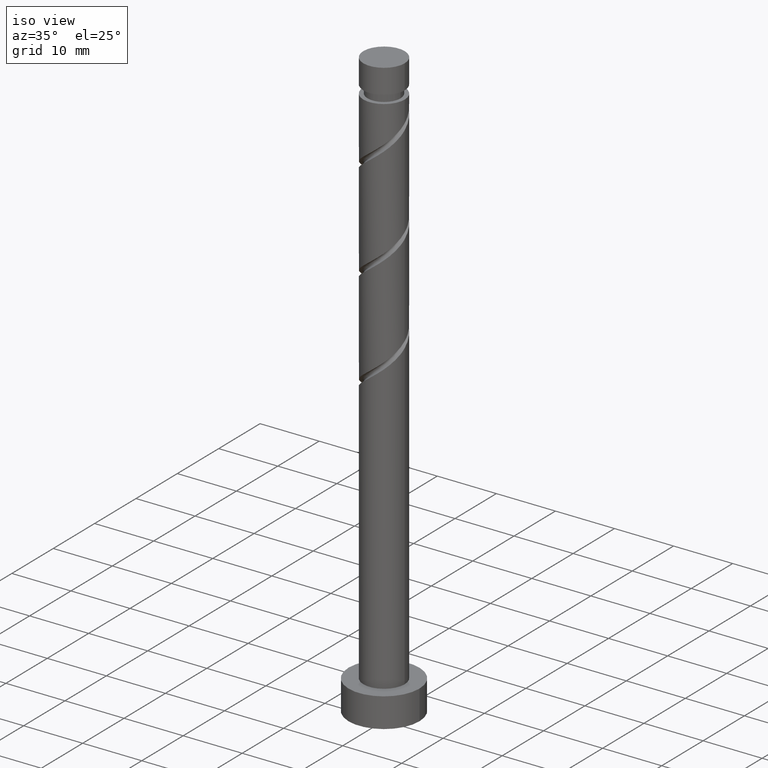
[diagram: clean part render]
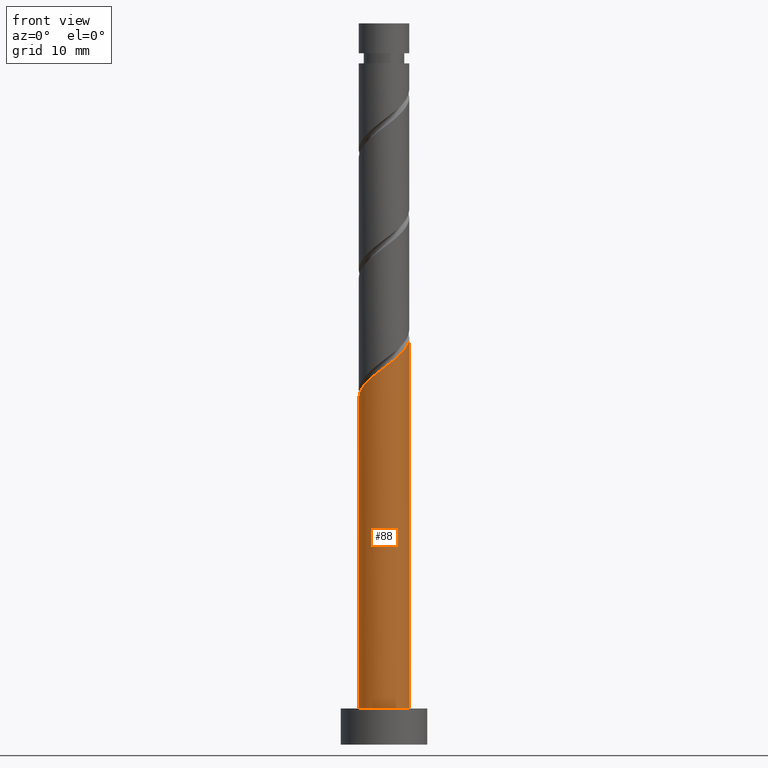
[diagram: tour spotlight — one face highlighted and labeled with its STEP entity id]
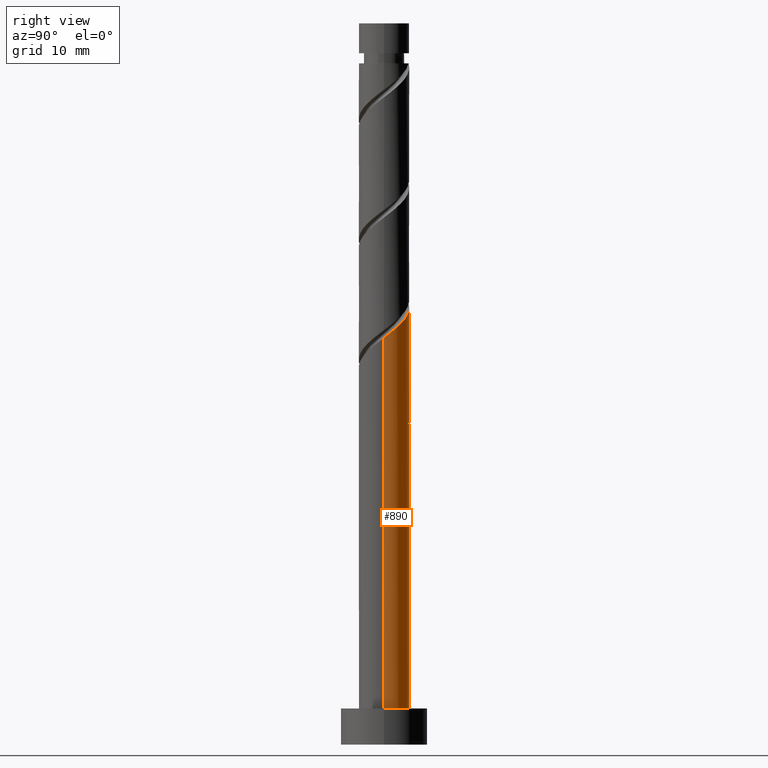
[diagram: tour spotlight — one face highlighted and labeled with its STEP entity id]
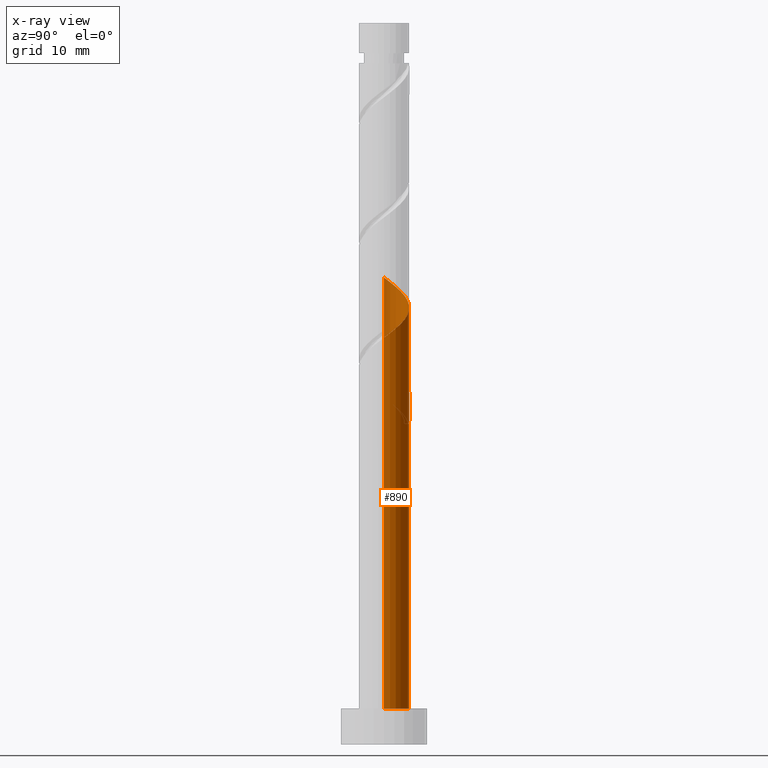
[diagram: x-ray of the same camera — body ghosted, this tour face saturated]
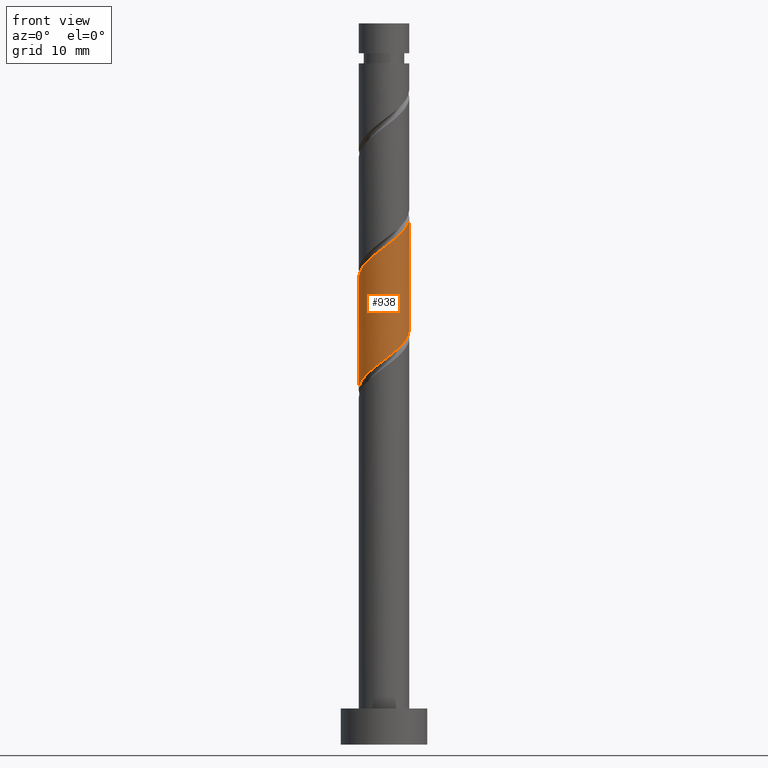
[diagram: tour spotlight — one face highlighted and labeled with its STEP entity id]
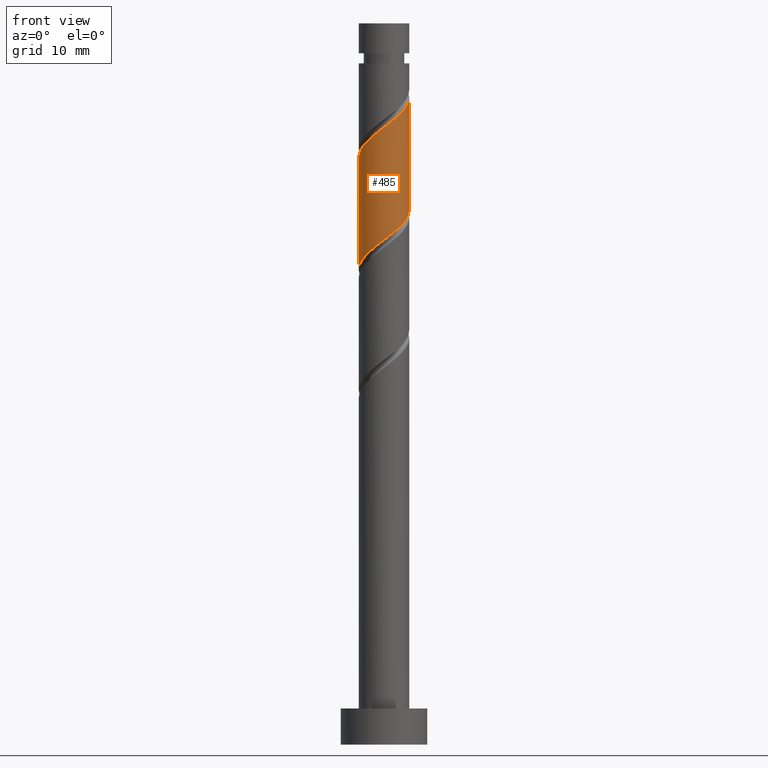
[diagram: tour spotlight — one face highlighted and labeled with its STEP entity id]
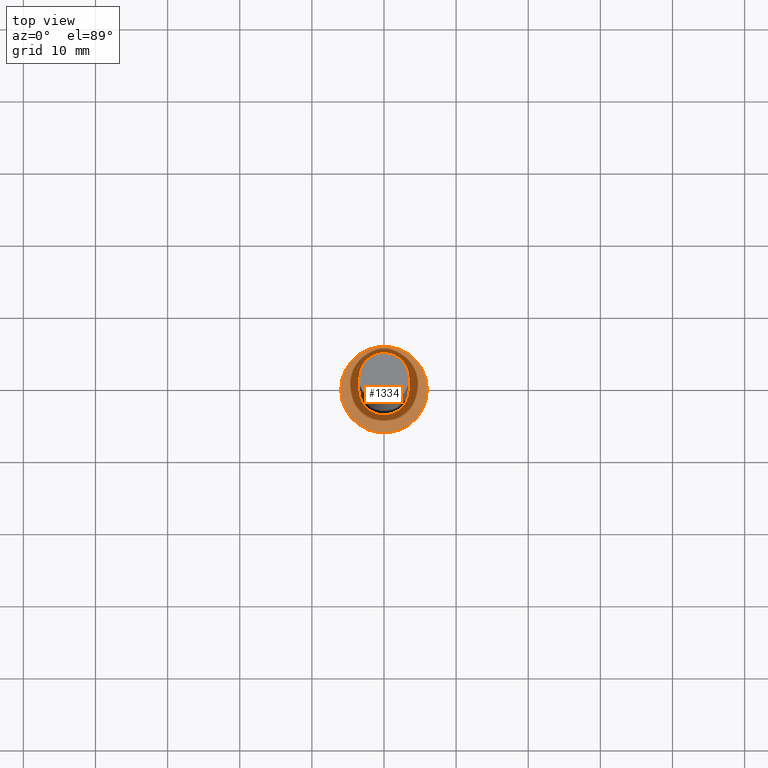
[diagram: tour spotlight — one face highlighted and labeled with its STEP entity id]
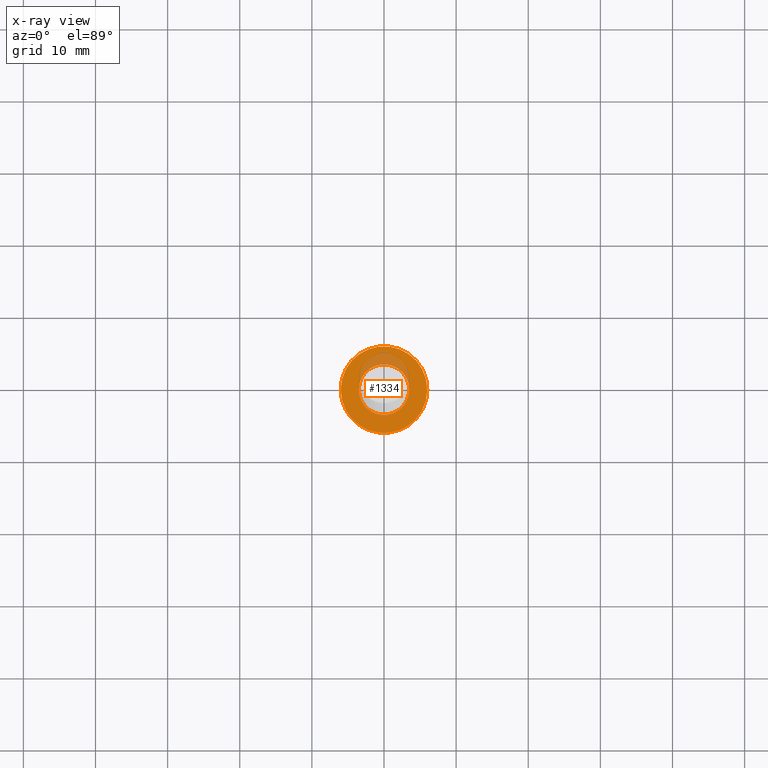
[diagram: x-ray of the same camera — body ghosted, this tour face saturated]
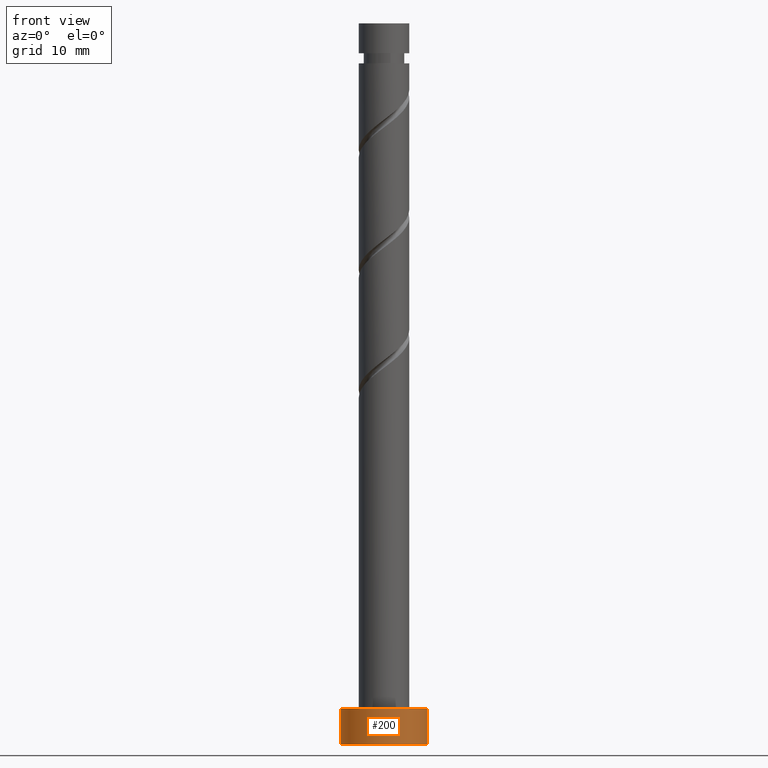
[diagram: tour spotlight — one face highlighted and labeled with its STEP entity id]
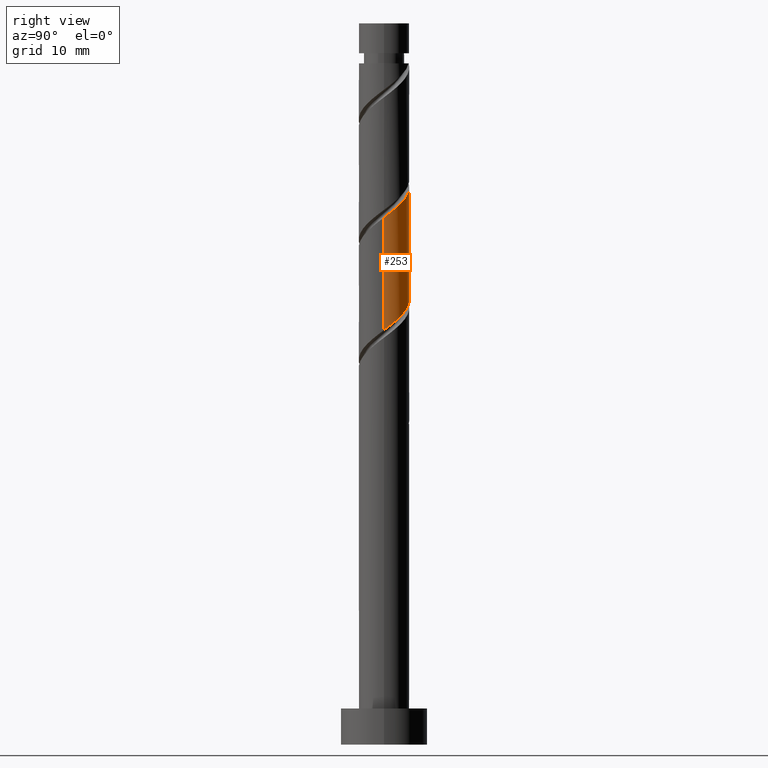
[diagram: tour spotlight — one face highlighted and labeled with its STEP entity id]
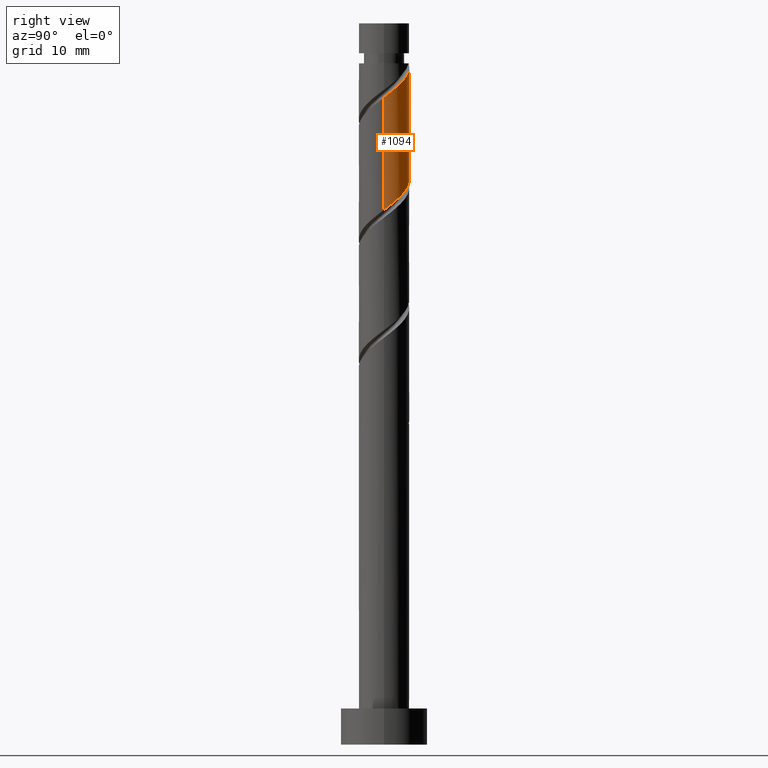
[diagram: tour spotlight — one face highlighted and labeled with its STEP entity id]
A machine part: a face-by-face anatomy tour. The part has 21 B-rep faces; the first image is the clean iso view, then the 8 largest visible faces are spotlighted one at a time (largest first), each with its STEP entity span.

Face 1 — front view, entity #88. In plain terms, the highlighted cylindrical surface (edge-blend (fillet) strip) has radius 3.5 mm, axis along (-0, -0, -1).
Definition (entity closure, byte-faithful):
#88 = ADVANCED_FACE ( 'NONE', ( #488 ), #150, .T. ) ;
#98 = CARTESIAN_POINT ( 'NONE',  ( 1.301292749804668691, -3.307189808560500488, 53.25026766905246234 ) ) ;
#106 = CARTESIAN_POINT ( 'NONE',  ( -2.213464014448052186, -2.780547483371601736, 50.47248989127469088 ) ) ;
#107 = DIRECTION ( 'NONE',  ( -0.000000000000000000, -0.000000000000000000, -1.000000000000000000 ) ) ;
#150 = CYLINDRICAL_SURFACE ( 'NONE', #1415, 3.500000000000000000 ) ;
#175 = CARTESIAN_POINT ( 'NONE',  ( -3.498835021510416254, -0.09029669015107058549, 48.15767507645987422 ) ) ;
#183 = EDGE_CURVE ( 'NONE', #1384, #683, #978, .T. ) ;
#219 =( BOUNDED_CURVE ( )  B_SPLINE_CURVE ( 2, ( #1450, #880, #175, #351, #813, #1026, #583, #106, #725, #901, #1236, #896, #359, #98, #1244, #574, #476, #1261, #1137, #1015, #913 ),
 .UNSPECIFIED., .F., .T. ) 
 B_SPLINE_CURVE_WITH_KNOTS ( ( 3, 2, 2, 2, 2, 2, 2, 2, 2, 2, 3 ),
 ( 0.05452480538552904876, 0.05555555555555558023, 0.06944444444444441977, 0.08333333333333337034, 0.09722222222222220989, 0.1111111111111111605, 0.1250000000000000000, 0.1388888888888888395, 0.1527777777777777901, 0.1666666666666666297, 0.1795248053855290626 ),
 .UNSPECIFIED. ) 
 CURVE ( )  GEOMETRIC_REPRESENTATION_ITEM ( )  RATIONAL_B_SPLINE_CURVE ( ( 0.9071930855141264738, 0.9080659294509741963, 0.9090909090909143897, 0.8952797754656489637, 0.9090909090909143897, 0.8952797754656489637, 0.9090909090909143897, 0.8952797754656489637, 0.9090909090909143897, 0.8952797754656489637, 0.9090909090909143897, 0.8952797754656489637, 0.9090909090909143897, 0.8952797754656489637, 0.9090909090909143897, 0.8952797754656489637, 0.9090909090909143897, 0.8952797754656489637, 0.9090909090909143897, 0.8963047551055890461, 0.9071930855141266958 ) ) 
 REPRESENTATION_ITEM ( '' )  );
#298 = CARTESIAN_POINT ( 'NONE',  ( 0.000000000000000000, 0.000000000000000000, 5.000000000000000000 ) ) ;
#350 = ORIENTED_EDGE ( 'NONE', *, *, #655, .T. ) ;
#351 = CARTESIAN_POINT ( 'NONE',  ( -3.482913278768109855, -0.7072357054910396457, 48.62063803942282192 ) ) ;
#359 = CARTESIAN_POINT ( 'NONE',  ( 0.6964912059746342088, -3.430000000000005489, 52.78730470608950753 ) ) ;
#399 = ORIENTED_EDGE ( 'NONE', *, *, #183, .T. ) ;
#468 = EDGE_LOOP ( 'NONE', ( #707, #1449, #399, #350 ) ) ;
#476 = CARTESIAN_POINT ( 'NONE',  ( 2.738304719242937502, -2.179836522441968238, 54.63915655794135517 ) ) ;
#484 = LINE ( 'NONE', #806, #1020 ) ;
#488 = FACE_OUTER_BOUND ( 'NONE', #468, .T. ) ;
#554 = CARTESIAN_POINT ( 'NONE',  ( -3.500000000000000000, 0.000000000000000000, 100.0000000000000000 ) ) ;
#574 = CARTESIAN_POINT ( 'NONE',  ( 2.353940726802703942, -2.662673525845816958, 54.17619359497838616 ) ) ;
#582 = CIRCLE ( 'NONE', #1431, 3.500000000000000000 ) ;
#583 = CARTESIAN_POINT ( 'NONE',  ( -2.622221531993312205, -2.318179077886495687, 50.00952692831172186 ) ) ;
#655 = EDGE_CURVE ( 'NONE', #683, #835, #582, .T. ) ;
#683 = VERTEX_POINT ( 'NONE', #1443 ) ;
#707 = ORIENTED_EDGE ( 'NONE', *, *, #1235, .F. ) ;
#725 = CARTESIAN_POINT ( 'NONE',  ( -1.671218283206729494, -3.075228357354228947, 50.93545285423765989 ) ) ;
#747 = DIRECTION ( 'NONE',  ( -1.000000000000000000, 0.000000000000000000, 0.000000000000000000 ) ) ;
#782 = VECTOR ( 'NONE', #873, 1000.000000000000000 ) ;
#806 = CARTESIAN_POINT ( 'NONE',  ( 3.500000000000000000, 4.286263797015736595E-16, 100.0000000000000000 ) ) ;
#813 = CARTESIAN_POINT ( 'NONE',  ( -3.256946164153340817, -1.281523188946214420, 49.08360100238579804 ) ) ;
#835 = VERTEX_POINT ( 'NONE', #1351 ) ;
#873 = DIRECTION ( 'NONE',  ( -0.000000000000000000, -0.000000000000000000, -1.000000000000000000 ) ) ;
#880 = CARTESIAN_POINT ( 'NONE',  ( -3.500000000000005329, -0.04515586016207165376, 48.12380052503311134 ) ) ;
#896 = CARTESIAN_POINT ( 'NONE',  ( 0.09168966214459756126, -3.552810191439508714, 52.32434174312654562 ) ) ;
#901 = CARTESIAN_POINT ( 'NONE',  ( -1.128972551965405025, -3.369909231336855271, 51.39841581720060049 ) ) ;
#913 = CARTESIAN_POINT ( 'NONE',  ( 3.500000000000003997, -2.532154829698480653E-15, 56.42311648443407535 ) ) ;
#927 = CARTESIAN_POINT ( 'NONE',  ( 3.500000000000003997, -2.532154829698480653E-15, 56.42311648443407535 ) ) ;
#975 = EDGE_CURVE ( 'NONE', #1384, #1404, #219, .T. ) ;
#978 = LINE ( 'NONE', #554, #782 ) ;
#1015 = CARTESIAN_POINT ( 'NONE',  ( 3.500000000000005773, -0.5706903013716018158, 55.99319697206845348 ) ) ;
#1020 = VECTOR ( 'NONE', #107, 1000.000000000000000 ) ;
#1026 = CARTESIAN_POINT ( 'NONE',  ( -3.030979049538570891, -1.855810672401389638, 49.54656396534874574 ) ) ;
#1137 = CARTESIAN_POINT ( 'NONE',  ( 3.318712737967946413, -1.111820922113511134, 55.56508248386727900 ) ) ;
#1182 = CARTESIAN_POINT ( 'NONE',  ( 0.000000000000000000, 0.000000000000000000, 100.0000000000000000 ) ) ;
#1195 = DIRECTION ( 'NONE',  ( 1.000000000000000000, 0.000000000000000000, 0.000000000000000000 ) ) ;
#1210 = DIRECTION ( 'NONE',  ( 0.000000000000000000, 0.000000000000000000, 1.000000000000000000 ) ) ;
#1235 = EDGE_CURVE ( 'NONE', #1404, #835, #484, .T. ) ;
#1236 = CARTESIAN_POINT ( 'NONE',  ( -0.5186414449104036484, -3.461359711388183324, 51.86137878016358371 ) ) ;
#1244 = CARTESIAN_POINT ( 'NONE',  ( 1.827616738303687649, -2.984931667203159389, 53.71323063201542425 ) ) ;
#1261 = CARTESIAN_POINT ( 'NONE',  ( 3.122668711683168397, -1.696999519038120185, 55.10211952090430287 ) ) ;
#1295 = DIRECTION ( 'NONE',  ( -0.000000000000000000, -0.000000000000000000, -1.000000000000000000 ) ) ;
#1351 = CARTESIAN_POINT ( 'NONE',  ( 3.500000000000000000, 4.286263797015736595E-16, 5.000000000000000000 ) ) ;
#1384 = VERTEX_POINT ( 'NONE', #1455 ) ;
#1404 = VERTEX_POINT ( 'NONE', #927 ) ;
#1415 = AXIS2_PLACEMENT_3D ( 'NONE', #1182, #1295, #747 ) ;
#1431 = AXIS2_PLACEMENT_3D ( 'NONE', #298, #1210, #1195 ) ;
#1443 = CARTESIAN_POINT ( 'NONE',  ( -3.500000000000000000, 0.000000000000000000, 5.000000000000000000 ) ) ;
#1449 = ORIENTED_EDGE ( 'NONE', *, *, #975, .F. ) ;
#1450 = CARTESIAN_POINT ( 'NONE',  ( -3.500000000000004441, 2.554563279518821315E-15, 48.08978315110073964 ) ) ;
#1455 = CARTESIAN_POINT ( 'NONE',  ( -3.500000000000003997, 2.554563279518821315E-15, 48.08978315110073964 ) ) ;

Face 2 — right view, entity #890. An x-ray twin of the same camera follows (body ghosted, this face saturated) — the face is partly hidden behind the body. In plain terms, the highlighted cylindrical surface (edge-blend (fillet) strip) has radius 3.5 mm, axis along (-0, -0, -1).
Definition (entity closure, byte-faithful):
#2 = CARTESIAN_POINT ( 'NONE',  ( -3.499999999999999556, -1.628347353611422389E-15, 49.15149292774492551 ) ) ;
#34 = CARTESIAN_POINT ( 'NONE',  ( -3.030979049538565562, 1.855810672401388306, 47.69471211349691231 ) ) ;
#46 = DIRECTION ( 'NONE',  ( -0.000000000000000000, -0.000000000000000000, -1.000000000000000000 ) ) ;
#54 = CARTESIAN_POINT ( 'NONE',  ( -1.671218283206725719, 3.075228357354224951, 46.30582322460800526 ) ) ;
#91 = CARTESIAN_POINT ( 'NONE',  ( 2.622221531993312205, 2.318179077886497019, 58.34286026164506467 ) ) ;
#107 = DIRECTION ( 'NONE',  ( -0.000000000000000000, -0.000000000000000000, -1.000000000000000000 ) ) ;
#133 = ORIENTED_EDGE ( 'NONE', *, *, #183, .F. ) ;
#149 = CARTESIAN_POINT ( 'NONE',  ( -0.6964912059746336537, 3.430000000000005045, 44.45397137275616473 ) ) ;
#159 = ORIENTED_EDGE ( 'NONE', *, *, #1048, .F. ) ;
#183 = EDGE_CURVE ( 'NONE', #1384, #683, #978, .T. ) ;
#186 = CARTESIAN_POINT ( 'NONE',  ( -0.09168966214459861597, 3.552810191439508714, 60.65767507645986001 ) ) ;
#191 = DIRECTION ( 'NONE',  ( -1.000000000000000000, 0.000000000000000000, 0.000000000000000000 ) ) ;
#209 = AXIS2_PLACEMENT_3D ( 'NONE', #677, #799, #1228 ) ;
#212 = CARTESIAN_POINT ( 'NONE',  ( 2.213464014448053074, 2.780547483371601736, 58.80582322460801237 ) ) ;
#248 = ORIENTED_EDGE ( 'NONE', *, *, #1143, .F. ) ;
#261 = VERTEX_POINT ( 'NONE', #1089 ) ;
#274 = CARTESIAN_POINT ( 'NONE',  ( 3.500000000000003997, 0.04515586016207240316, 56.45713385836643994 ) ) ;
#292 = CARTESIAN_POINT ( 'NONE',  ( -2.622221531993306876, 2.318179077886493467, 47.23174915053395040 ) ) ;
#311 = CARTESIAN_POINT ( 'NONE',  ( -2.353940726802705274, 2.662673525845816513, 62.50952692831170054 ) ) ;
#325 = CARTESIAN_POINT ( 'NONE',  ( -2.738304719242937502, 2.179836522441968238, 62.97248989127468377 ) ) ;
#333 = CARTESIAN_POINT ( 'NONE',  ( -3.500000000000003997, 0.5706903013716004835, 47.65986363873510356 ) ) ;
#342 = CARTESIAN_POINT ( 'NONE',  ( -3.500000000000004885, 0.5706903013716024820, 64.32653030540177497 ) ) ;
#381 = CARTESIAN_POINT ( 'NONE',  ( -3.500000000000000000, 0.000000000000000000, 100.0000000000000000 ) ) ;
#386 = CARTESIAN_POINT ( 'NONE',  ( 0.6964912059746349859, 3.430000000000000160, 44.45397137275616473 ) ) ;
#398 = VERTEX_POINT ( 'NONE', #1029 ) ;
#434 = CARTESIAN_POINT ( 'NONE',  ( 3.030979049538572223, 1.855810672401387862, 57.87989729868208144 ) ) ;
#442 = DIRECTION ( 'NONE',  ( -1.000000000000000000, 0.000000000000000000, 0.000000000000000000 ) ) ;
#457 = CARTESIAN_POINT ( 'NONE',  ( -1.301292749804670024, 3.307189808560500044, 44.91693433571913374 ) ) ;
#483 = VERTEX_POINT ( 'NONE', #563 ) ;
#484 = LINE ( 'NONE', #806, #1020 ) ;
#501 = LINE ( 'NONE', #381, #1360 ) ;
#505 = CARTESIAN_POINT ( 'NONE',  ( -2.213464014448049078, 2.780547483371598183, 46.76878618757099559 ) ) ;
#515 = CARTESIAN_POINT ( 'NONE',  ( 3.482913278768109855, 0.7072357054910390906, 56.95397137275616473 ) ) ;
#526 = CARTESIAN_POINT ( 'NONE',  ( -3.256946164153335932, 1.281523188946213532, 48.15767507645986001 ) ) ;
#543 =( BOUNDED_CURVE ( )  B_SPLINE_CURVE ( 2, ( #2, #1170, #619, #1432, #526, #34, #292, #505, #54, #950, #614, #1407, #386 ),
 .UNSPECIFIED., .F., .T. ) 
 B_SPLINE_CURVE_WITH_KNOTS ( ( 3, 2, 2, 2, 2, 2, 3 ),
 ( 0.9295248053855290626, 0.9305555555555555802, 0.9444444444444444198, 0.9583333333333333703, 0.9722222222222222099, 0.9861111111111111605, 1.000000000000000000 ),
 .UNSPECIFIED. ) 
 CURVE ( )  GEOMETRIC_REPRESENTATION_ITEM ( )  RATIONAL_B_SPLINE_CURVE ( ( 0.9071930855141210337, 0.9080659294509687562, 0.9090909090909088386, 0.8952797754656434126, 0.9090909090909088386, 0.8952797754656434126, 0.9090909090909088386, 0.8952797754656434126, 0.9090909090909088386, 0.8952797754656434126, 0.9090909090909088386, 0.8952797754656434126, 0.9090909090909088386 ) ) 
 REPRESENTATION_ITEM ( '' )  );
#554 = CARTESIAN_POINT ( 'NONE',  ( -3.500000000000000000, 0.000000000000000000, 100.0000000000000000 ) ) ;
#561 = FACE_OUTER_BOUND ( 'NONE', #1115, .T. ) ;
#563 = CARTESIAN_POINT ( 'NONE',  ( -3.500000000000003997, 2.554563279518821315E-15, 64.75644981776741815 ) ) ;
#614 = CARTESIAN_POINT ( 'NONE',  ( -0.5186414449104019830, 3.461359711388177551, 45.37989729868209565 ) ) ;
#619 = CARTESIAN_POINT ( 'NONE',  ( -3.498835021510410925, 0.09029669015107136265, 49.08360100238579093 ) ) ;
#645 = CARTESIAN_POINT ( 'NONE',  ( -0.6964912059746336537, 3.430000000000005489, 61.12063803942284324 ) ) ;
#646 = CIRCLE ( 'NONE', #209, 3.500000000000000000 ) ;
#674 = CARTESIAN_POINT ( 'NONE',  ( -3.500000000000004441, 2.554563279518821315E-15, 48.08978315110073964 ) ) ;
#675 =( BOUNDED_CURVE ( )  B_SPLINE_CURVE ( 2, ( #149, #457, #1250, #1348, #1032, #702, #1486, #333, #674 ),
 .UNSPECIFIED., .F., .T. ) 
 B_SPLINE_CURVE_WITH_KNOTS ( ( 3, 2, 2, 2, 3 ),
 ( 0.000000000000000000, 0.01388888888888883955, 0.02777777777777779358, 0.04166666666666662966, 0.05452480538552905570 ),
 .UNSPECIFIED. ) 
 CURVE ( )  GEOMETRIC_REPRESENTATION_ITEM ( )  RATIONAL_B_SPLINE_CURVE ( ( 0.9090909090909143897, 0.8952797754656489637, 0.9090909090909143897, 0.8952797754656489637, 0.9090909090909143897, 0.8952797754656489637, 0.9090909090909143897, 0.8963047551055891571, 0.9071930855141264738 ) ) 
 REPRESENTATION_ITEM ( '' )  );
#676 = AXIS2_PLACEMENT_3D ( 'NONE', #1459, #993, #442 ) ;
#677 = CARTESIAN_POINT ( 'NONE',  ( 0.000000000000000000, 0.000000000000000000, 5.000000000000000000 ) ) ;
#683 = VERTEX_POINT ( 'NONE', #1443 ) ;
#701 = AXIS2_PLACEMENT_3D ( 'NONE', #1342, #772, #191 ) ;
#702 = CARTESIAN_POINT ( 'NONE',  ( -3.122668711683169285, 1.696999519038119963, 46.76878618757099559 ) ) ;
#712 = ORIENTED_EDGE ( 'NONE', *, *, #1129, .F. ) ;
#757 = CARTESIAN_POINT ( 'NONE',  ( 1.128972551965407245, 3.369909231336854827, 59.73174915053393619 ) ) ;
#772 = DIRECTION ( 'NONE',  ( 0.000000000000000000, -0.000000000000000000, -1.000000000000000000 ) ) ;
#782 = VECTOR ( 'NONE', #873, 1000.000000000000000 ) ;
#797 = CARTESIAN_POINT ( 'NONE',  ( 0.6964912059746349859, 3.430000000000000160, 44.45397137275616473 ) ) ;
#799 = DIRECTION ( 'NONE',  ( 0.000000000000000000, 0.000000000000000000, 1.000000000000000000 ) ) ;
#806 = CARTESIAN_POINT ( 'NONE',  ( 3.500000000000000000, 4.286263797015736595E-16, 100.0000000000000000 ) ) ;
#827 = EDGE_CURVE ( 'NONE', #835, #683, #646, .T. ) ;
#829 = ORIENTED_EDGE ( 'NONE', *, *, #1235, .T. ) ;
#835 = VERTEX_POINT ( 'NONE', #1351 ) ;
#847 = CARTESIAN_POINT ( 'NONE',  ( 3.500000000000003997, -2.532154829698480653E-15, 56.42311648443407535 ) ) ;
#873 = DIRECTION ( 'NONE',  ( -0.000000000000000000, -0.000000000000000000, -1.000000000000000000 ) ) ;
#890 = ADVANCED_FACE ( 'NONE', ( #561 ), #906, .T. ) ;
#906 = CYLINDRICAL_SURFACE ( 'NONE', #676, 3.500000000000000000 ) ;
#920 = ORIENTED_EDGE ( 'NONE', *, *, #946, .T. ) ;
#927 = CARTESIAN_POINT ( 'NONE',  ( 3.500000000000003997, -2.532154829698480653E-15, 56.42311648443407535 ) ) ;
#946 = EDGE_CURVE ( 'NONE', #398, #1037, #1207, .T. ) ;
#950 = CARTESIAN_POINT ( 'NONE',  ( -1.128972551965402804, 3.369909231336852162, 45.84286026164505756 ) ) ;
#959 = CARTESIAN_POINT ( 'NONE',  ( 3.256946164153341261, 1.281523188946213310, 57.41693433571914085 ) ) ;
#978 = LINE ( 'NONE', #554, #782 ) ;
#985 =( BOUNDED_CURVE ( )  B_SPLINE_CURVE ( 2, ( #847, #274, #1065, #515, #959, #434, #91, #212, #1111, #757, #1202, #186, #645, #1245, #1238, #311, #325, #1466, #1146, #342, #1380 ),
 .UNSPECIFIED., .F., .T. ) 
 B_SPLINE_CURVE_WITH_KNOTS ( ( 3, 2, 2, 2, 2, 2, 2, 2, 2, 2, 3 ),
 ( 0.1795248053855290626, 0.1805555555555555802, 0.1944444444444444198, 0.2083333333333333703, 0.2222222222222222099, 0.2361111111111111605, 0.2500000000000000000, 0.2638888888888888395, 0.2777777777777777901, 0.2916666666666666297, 0.3045248053855290071 ),
 .UNSPECIFIED. ) 
 CURVE ( )  GEOMETRIC_REPRESENTATION_ITEM ( )  RATIONAL_B_SPLINE_CURVE ( ( 0.9071930855141266958, 0.9080659294509743074, 0.9090909090909143897, 0.8952797754656489637, 0.9090909090909143897, 0.8952797754656489637, 0.9090909090909143897, 0.8952797754656489637, 0.9090909090909143897, 0.8952797754656489637, 0.9090909090909143897, 0.8952797754656489637, 0.9090909090909143897, 0.8952797754656489637, 0.9090909090909143897, 0.8952797754656489637, 0.9090909090909143897, 0.8952797754656489637, 0.9090909090909143897, 0.8963047551055890461, 0.9071930855141265848 ) ) 
 REPRESENTATION_ITEM ( '' )  );
#993 = DIRECTION ( 'NONE',  ( -0.000000000000000000, -0.000000000000000000, -1.000000000000000000 ) ) ;
#1020 = VECTOR ( 'NONE', #107, 1000.000000000000000 ) ;
#1029 = CARTESIAN_POINT ( 'NONE',  ( -0.6964912059746336537, 3.430000000000005045, 44.45397137275616473 ) ) ;
#1032 = CARTESIAN_POINT ( 'NONE',  ( -2.738304719242937502, 2.179836522441968238, 46.30582322460802658 ) ) ;
#1037 = VERTEX_POINT ( 'NONE', #797 ) ;
#1048 = EDGE_CURVE ( 'NONE', #398, #1384, #675, .T. ) ;
#1065 = CARTESIAN_POINT ( 'NONE',  ( 3.498835021510416254, 0.09029669015107093244, 56.49100840979321703 ) ) ;
#1089 = CARTESIAN_POINT ( 'NONE',  ( -3.500000000000000000, -1.628347353611422389E-15, 49.15149292774492551 ) ) ;
#1111 = CARTESIAN_POINT ( 'NONE',  ( 1.671218283206729716, 3.075228357354228947, 59.26878618757098849 ) ) ;
#1115 = EDGE_LOOP ( 'NONE', ( #248, #829, #1278, #133, #159, #920, #712, #1470 ) ) ;
#1129 = EDGE_CURVE ( 'NONE', #261, #1037, #543, .T. ) ;
#1143 = EDGE_CURVE ( 'NONE', #1404, #483, #985, .T. ) ;
#1146 = CARTESIAN_POINT ( 'NONE',  ( -3.318712737967946413, 1.111820922113509580, 63.89841581720061470 ) ) ;
#1170 = CARTESIAN_POINT ( 'NONE',  ( -3.499999999999999556, 0.04515586016207310399, 49.11747555381256802 ) ) ;
#1202 = CARTESIAN_POINT ( 'NONE',  ( 0.5186414449104058688, 3.461359711388182436, 60.19471211349691231 ) ) ;
#1207 = CIRCLE ( 'NONE', #701, 3.500000000000000000 ) ;
#1228 = DIRECTION ( 'NONE',  ( 1.000000000000000000, 0.000000000000000000, 0.000000000000000000 ) ) ;
#1235 = EDGE_CURVE ( 'NONE', #1404, #835, #484, .T. ) ;
#1238 = CARTESIAN_POINT ( 'NONE',  ( -1.827616738303687871, 2.984931667203159389, 62.04656396534878127 ) ) ;
#1245 = CARTESIAN_POINT ( 'NONE',  ( -1.301292749804670024, 3.307189808560500044, 61.58360100238579093 ) ) ;
#1250 = CARTESIAN_POINT ( 'NONE',  ( -1.827616738303687871, 2.984931667203159389, 45.37989729868209565 ) ) ;
#1278 = ORIENTED_EDGE ( 'NONE', *, *, #827, .T. ) ;
#1342 = CARTESIAN_POINT ( 'NONE',  ( 0.000000000000000000, 0.000000000000000000, 44.45397137275616473 ) ) ;
#1348 = CARTESIAN_POINT ( 'NONE',  ( -2.353940726802705274, 2.662673525845816513, 45.84286026164506467 ) ) ;
#1351 = CARTESIAN_POINT ( 'NONE',  ( 3.500000000000000000, 4.286263797015736595E-16, 5.000000000000000000 ) ) ;
#1360 = VECTOR ( 'NONE', #46, 1000.000000000000000 ) ;
#1380 = CARTESIAN_POINT ( 'NONE',  ( -3.500000000000003997, 2.554563279518821315E-15, 64.75644981776741815 ) ) ;
#1384 = VERTEX_POINT ( 'NONE', #1455 ) ;
#1404 = VERTEX_POINT ( 'NONE', #927 ) ;
#1407 = CARTESIAN_POINT ( 'NONE',  ( 0.09168966214459910169, 3.552810191439504273, 44.91693433571914085 ) ) ;
#1432 = CARTESIAN_POINT ( 'NONE',  ( -3.482913278768106302, 0.7072357054910394236, 48.62063803942284324 ) ) ;
#1443 = CARTESIAN_POINT ( 'NONE',  ( -3.500000000000000000, 0.000000000000000000, 5.000000000000000000 ) ) ;
#1455 = CARTESIAN_POINT ( 'NONE',  ( -3.500000000000003997, 2.554563279518821315E-15, 48.08978315110073964 ) ) ;
#1458 = EDGE_CURVE ( 'NONE', #483, #261, #501, .T. ) ;
#1459 = CARTESIAN_POINT ( 'NONE',  ( 0.000000000000000000, 0.000000000000000000, 100.0000000000000000 ) ) ;
#1466 = CARTESIAN_POINT ( 'NONE',  ( -3.122668711683169285, 1.696999519038119963, 63.43545285423764568 ) ) ;
#1470 = ORIENTED_EDGE ( 'NONE', *, *, #1458, .F. ) ;
#1486 = CARTESIAN_POINT ( 'NONE',  ( -3.318712737967946413, 1.111820922113509580, 47.23174915053396461 ) ) ;

Face 3 — front view, entity #938. In plain terms, the highlighted cylindrical surface (edge-blend (fillet) strip) has radius 3.5 mm, axis along (-0, -0, -1).
Definition (entity closure, byte-faithful):
#46 = DIRECTION ( 'NONE',  ( -0.000000000000000000, -0.000000000000000000, -1.000000000000000000 ) ) ;
#55 = CARTESIAN_POINT ( 'NONE',  ( 3.500000000000000444, -0.04515586016207433911, 57.45080888714589662 ) ) ;
#101 = CARTESIAN_POINT ( 'NONE',  ( 3.500000000000000000, 3.660046803988976504E-16, 57.48482626107826121 ) ) ;
#131 = CARTESIAN_POINT ( 'NONE',  ( 3.500000000000005773, -0.5706903013716018158, 72.65986363873513199 ) ) ;
#151 = CARTESIAN_POINT ( 'NONE',  ( -2.213464014448052186, -2.780547483371601736, 67.13915655794134807 ) ) ;
#171 = CARTESIAN_POINT ( 'NONE',  ( 3.499999999999999556, 3.660046803988976504E-16, 57.48482626107826121 ) ) ;
#182 = VERTEX_POINT ( 'NONE', #189 ) ;
#187 = CARTESIAN_POINT ( 'NONE',  ( 1.671218283206725719, -3.075228357354224951, 54.63915655794134807 ) ) ;
#189 = CARTESIAN_POINT ( 'NONE',  ( 3.500000000000003997, -2.532154829698480653E-15, 73.08978315110074675 ) ) ;
#190 = CARTESIAN_POINT ( 'NONE',  ( -3.500000000000003997, -0.04515586016206982189, 64.79046719169977564 ) ) ;
#196 = CARTESIAN_POINT ( 'NONE',  ( -3.498835021510416254, -0.09029669015107058549, 64.82434174312655273 ) ) ;
#206 =( BOUNDED_CURVE ( )  B_SPLINE_CURVE ( 2, ( #171, #55, #1216, #876, #1085, #532, #743, #965, #187, #540, #981, #654, #1096, #1438, #306, #767, #1414, #856, #1336, #314, #1311 ),
 .UNSPECIFIED., .F., .T. ) 
 B_SPLINE_CURVE_WITH_KNOTS ( ( 3, 2, 2, 2, 2, 2, 2, 2, 2, 2, 3 ),
 ( 0.8045248053855290626, 0.8055555555555555802, 0.8194444444444444198, 0.8333333333333333703, 0.8472222222222222099, 0.8611111111111111605, 0.8750000000000000000, 0.8888888888888888395, 0.9027777777777777901, 0.9166666666666666297, 0.9295248053855290626 ),
 .UNSPECIFIED. ) 
 CURVE ( )  GEOMETRIC_REPRESENTATION_ITEM ( )  RATIONAL_B_SPLINE_CURVE ( ( 0.9071930855141210337, 0.9080659294509687562, 0.9090909090909088386, 0.8952797754656434126, 0.9090909090909088386, 0.8952797754656434126, 0.9090909090909088386, 0.8952797754656434126, 0.9090909090909088386, 0.8952797754656434126, 0.9090909090909088386, 0.8952797754656434126, 0.9090909090909088386, 0.8952797754656434126, 0.9090909090909088386, 0.8952797754656434126, 0.9090909090909088386, 0.8952797754656434126, 0.9090909090909088386, 0.8963047551055834949, 0.9071930855141210337 ) ) 
 REPRESENTATION_ITEM ( '' )  );
#228 = CYLINDRICAL_SURFACE ( 'NONE', #1333, 3.500000000000000000 ) ;
#231 = ORIENTED_EDGE ( 'NONE', *, *, #786, .F. ) ;
#246 = CARTESIAN_POINT ( 'NONE',  ( 1.827616738303687649, -2.984931667203159389, 70.37989729868213828 ) ) ;
#261 = VERTEX_POINT ( 'NONE', #1089 ) ;
#297 = EDGE_CURVE ( 'NONE', #182, #851, #1372, .T. ) ;
#306 = CARTESIAN_POINT ( 'NONE',  ( -1.827616738303686095, -2.984931667203153172, 51.86137878016356240 ) ) ;
#314 = CARTESIAN_POINT ( 'NONE',  ( -3.500000000000000888, -0.5706903013715982631, 49.58141244011054738 ) ) ;
#315 = CARTESIAN_POINT ( 'NONE',  ( -2.622221531993312205, -2.318179077886495687, 66.67619359497840037 ) ) ;
#345 = CARTESIAN_POINT ( 'NONE',  ( 0.000000000000000000, 0.000000000000000000, 100.0000000000000000 ) ) ;
#358 = CARTESIAN_POINT ( 'NONE',  ( -0.5186414449104036484, -3.461359711388183324, 68.52804544683026222 ) ) ;
#381 = CARTESIAN_POINT ( 'NONE',  ( -3.500000000000000000, 0.000000000000000000, 100.0000000000000000 ) ) ;
#418 = CARTESIAN_POINT ( 'NONE',  ( -3.030979049538570891, -1.855810672401389638, 66.21323063201541004 ) ) ;
#447 = EDGE_LOOP ( 'NONE', ( #1478, #1046, #812, #231 ) ) ;
#475 = CARTESIAN_POINT ( 'NONE',  ( 2.738304719242937502, -2.179836522441968238, 71.30582322460803368 ) ) ;
#482 = CARTESIAN_POINT ( 'NONE',  ( 3.122668711683168397, -1.696999519038120185, 71.76878618757096717 ) ) ;
#483 = VERTEX_POINT ( 'NONE', #563 ) ;
#489 = CARTESIAN_POINT ( 'NONE',  ( 0.6964912059746342088, -3.430000000000005489, 69.45397137275617183 ) ) ;
#501 = LINE ( 'NONE', #381, #1360 ) ;
#532 = CARTESIAN_POINT ( 'NONE',  ( 3.030979049538565562, -1.855810672401390304, 56.02804544683026222 ) ) ;
#535 = CARTESIAN_POINT ( 'NONE',  ( -3.256946164153340817, -1.281523188946214420, 65.75026766905246234 ) ) ;
#540 = CARTESIAN_POINT ( 'NONE',  ( 1.128972551965402360, -3.369909231336852162, 54.17619359497839326 ) ) ;
#563 = CARTESIAN_POINT ( 'NONE',  ( -3.500000000000003997, 2.554563279518821315E-15, 64.75644981776741815 ) ) ;
#598 = CARTESIAN_POINT ( 'NONE',  ( 0.09168966214459756126, -3.552810191439508714, 68.99100840979320992 ) ) ;
#617 = CARTESIAN_POINT ( 'NONE',  ( 2.353940726802703942, -2.662673525845816958, 70.84286026164505756 ) ) ;
#652 = CARTESIAN_POINT ( 'NONE',  ( -3.500000000000003997, 2.554563279518821315E-15, 64.75644981776741815 ) ) ;
#654 = CARTESIAN_POINT ( 'NONE',  ( -0.09168966214460039232, -3.552810191439505605, 53.25026766905246944 ) ) ;
#659 = CARTESIAN_POINT ( 'NONE',  ( -3.482913278768109855, -0.7072357054910396457, 65.28730470608951464 ) ) ;
#711 = CARTESIAN_POINT ( 'NONE',  ( 3.318712737967946413, -1.111820922113511134, 72.23174915053394329 ) ) ;
#743 = CARTESIAN_POINT ( 'NONE',  ( 2.622221531993306431, -2.318179077886494799, 55.56508248386727189 ) ) ;
#767 = CARTESIAN_POINT ( 'NONE',  ( -2.353940726802702166, -2.662673525845812517, 51.39841581720062180 ) ) ;
#786 = EDGE_CURVE ( 'NONE', #851, #261, #206, .T. ) ;
#812 = ORIENTED_EDGE ( 'NONE', *, *, #1458, .T. ) ;
#842 = CARTESIAN_POINT ( 'NONE',  ( 3.500000000000003997, -2.532154829698480653E-15, 73.08978315110073254 ) ) ;
#851 = VERTEX_POINT ( 'NONE', #101 ) ;
#856 = CARTESIAN_POINT ( 'NONE',  ( -3.122668711683166176, -1.696999519038117743, 50.47248989127468377 ) ) ;
#876 = CARTESIAN_POINT ( 'NONE',  ( 3.482913278768106302, -0.7072357054910397567, 56.95397137275617894 ) ) ;
#883 = DIRECTION ( 'NONE',  ( -1.000000000000000000, 0.000000000000000000, 0.000000000000000000 ) ) ;
#938 = ADVANCED_FACE ( 'NONE', ( #1223 ), #228, .T. ) ;
#965 = CARTESIAN_POINT ( 'NONE',  ( 2.213464014448048633, -2.780547483371599071, 55.10211952090432419 ) ) ;
#981 = CARTESIAN_POINT ( 'NONE',  ( 0.5186414449104017610, -3.461359711388177551, 53.71323063201542425 ) ) ;
#1046 = ORIENTED_EDGE ( 'NONE', *, *, #1396, .F. ) ;
#1085 = CARTESIAN_POINT ( 'NONE',  ( 3.256946164153335932, -1.281523188946213088, 56.49100840979320992 ) ) ;
#1089 = CARTESIAN_POINT ( 'NONE',  ( -3.500000000000000000, -1.628347353611422389E-15, 49.15149292774492551 ) ) ;
#1096 = CARTESIAN_POINT ( 'NONE',  ( -0.6964912059746344308, -3.430000000000000160, 52.78730470608950753 ) ) ;
#1114 = CARTESIAN_POINT ( 'NONE',  ( 3.500000000000000000, 4.286263797015736595E-16, 100.0000000000000000 ) ) ;
#1128 = DIRECTION ( 'NONE',  ( -0.000000000000000000, -0.000000000000000000, -1.000000000000000000 ) ) ;
#1142 = DIRECTION ( 'NONE',  ( -0.000000000000000000, -0.000000000000000000, -1.000000000000000000 ) ) ;
#1216 = CARTESIAN_POINT ( 'NONE',  ( 3.498835021510411369, -0.09029669015107254226, 57.41693433571912664 ) ) ;
#1223 = FACE_OUTER_BOUND ( 'NONE', #447, .T. ) ;
#1270 = CARTESIAN_POINT ( 'NONE',  ( -1.128972551965405025, -3.369909231336855271, 68.06508248386727189 ) ) ;
#1277 = CARTESIAN_POINT ( 'NONE',  ( -1.671218283206729494, -3.075228357354228947, 67.60211952090433840 ) ) ;
#1311 = CARTESIAN_POINT ( 'NONE',  ( -3.499999999999999556, -1.628347353611422389E-15, 49.15149292774492551 ) ) ;
#1333 = AXIS2_PLACEMENT_3D ( 'NONE', #345, #1128, #883 ) ;
#1336 = CARTESIAN_POINT ( 'NONE',  ( -3.318712737967941973, -1.111820922113506027, 50.00952692831172897 ) ) ;
#1337 = VECTOR ( 'NONE', #1142, 1000.000000000000000 ) ;
#1346 =( BOUNDED_CURVE ( )  B_SPLINE_CURVE ( 2, ( #652, #190, #196, #659, #535, #418, #315, #151, #1277, #1270, #358, #598, #489, #1391, #246, #617, #475, #482, #711, #131, #842 ),
 .UNSPECIFIED., .F., .T. ) 
 B_SPLINE_CURVE_WITH_KNOTS ( ( 3, 2, 2, 2, 2, 2, 2, 2, 2, 2, 3 ),
 ( 0.3045248053855290071, 0.3055555555555555802, 0.3194444444444444198, 0.3333333333333333703, 0.3472222222222222099, 0.3611111111111111605, 0.3750000000000000000, 0.3888888888888888395, 0.4027777777777777901, 0.4166666666666666297, 0.4295248053855290626 ),
 .UNSPECIFIED. ) 
 CURVE ( )  GEOMETRIC_REPRESENTATION_ITEM ( )  RATIONAL_B_SPLINE_CURVE ( ( 0.9071930855141265848, 0.9080659294509743074, 0.9090909090909143897, 0.8952797754656489637, 0.9090909090909143897, 0.8952797754656489637, 0.9090909090909143897, 0.8952797754656489637, 0.9090909090909143897, 0.8952797754656489637, 0.9090909090909143897, 0.8952797754656489637, 0.9090909090909143897, 0.8952797754656489637, 0.9090909090909143897, 0.8952797754656489637, 0.9090909090909143897, 0.8952797754656489637, 0.9090909090909143897, 0.8963047551055890461, 0.9071930855141266958 ) ) 
 REPRESENTATION_ITEM ( '' )  );
#1360 = VECTOR ( 'NONE', #46, 1000.000000000000000 ) ;
#1372 = LINE ( 'NONE', #1114, #1337 ) ;
#1391 = CARTESIAN_POINT ( 'NONE',  ( 1.301292749804668691, -3.307189808560500488, 69.91693433571911953 ) ) ;
#1396 = EDGE_CURVE ( 'NONE', #483, #182, #1346, .T. ) ;
#1414 = CARTESIAN_POINT ( 'NONE',  ( -2.738304719242934393, -2.179836522441964242, 50.93545285423763858 ) ) ;
#1438 = CARTESIAN_POINT ( 'NONE',  ( -1.301292749804670024, -3.307189808560495159, 52.32434174312655273 ) ) ;
#1458 = EDGE_CURVE ( 'NONE', #483, #261, #501, .T. ) ;
#1478 = ORIENTED_EDGE ( 'NONE', *, *, #297, .F. ) ;

Face 4 — front view, entity #485. In plain terms, the highlighted cylindrical surface (edge-blend (fillet) strip) has radius 3.5 mm, axis along (-0, -0, -1).
Definition (entity closure, byte-faithful):
#84 = CARTESIAN_POINT ( 'NONE',  ( -3.500000000000004885, -1.949535134369626586E-15, 81.42311648443410377 ) ) ;
#96 = CARTESIAN_POINT ( 'NONE',  ( 3.318712737967946413, -1.111820922113511134, 88.89841581720062891 ) ) ;
#104 = CARTESIAN_POINT ( 'NONE',  ( -3.030979049538570891, -1.855810672401389638, 82.87989729868208144 ) ) ;
#110 = CARTESIAN_POINT ( 'NONE',  ( -1.128972551965405025, -3.369909231336855271, 84.73174915053394329 ) ) ;
#115 = CARTESIAN_POINT ( 'NONE',  ( -3.500000000000004885, -0.04515586016208164577, 81.45713385836643283 ) ) ;
#120 =( BOUNDED_CURVE ( )  B_SPLINE_CURVE ( 2, ( #352, #815, #1148, #121, #1033, #477, #921, #360, #928, #1264, #238, #599, #853, #947, #1287, #263, #727, #1166, #1405, #384, #741 ),
 .UNSPECIFIED., .F., .T. ) 
 B_SPLINE_CURVE_WITH_KNOTS ( ( 3, 2, 2, 2, 2, 2, 2, 2, 2, 2, 3 ),
 ( 0.5545248053855291737, 0.5555555555555555802, 0.5694444444444444198, 0.5833333333333333703, 0.5972222222222222099, 0.6111111111111111605, 0.6250000000000000000, 0.6388888888888888395, 0.6527777777777777901, 0.6666666666666666297, 0.6795248053855290626 ),
 .UNSPECIFIED. ) 
 CURVE ( )  GEOMETRIC_REPRESENTATION_ITEM ( )  RATIONAL_B_SPLINE_CURVE ( ( 0.9071930855141213668, 0.9080659294509688673, 0.9090909090909088386, 0.8952797754656434126, 0.9090909090909088386, 0.8952797754656434126, 0.9090909090909088386, 0.8952797754656434126, 0.9090909090909088386, 0.8952797754656434126, 0.9090909090909088386, 0.8952797754656434126, 0.9090909090909088386, 0.8952797754656434126, 0.9090909090909088386, 0.8952797754656434126, 0.9090909090909088386, 0.8952797754656434126, 0.9090909090909088386, 0.8963047551055834949, 0.9071930855141210337 ) ) 
 REPRESENTATION_ITEM ( '' )  );
#121 = CARTESIAN_POINT ( 'NONE',  ( 3.482913278768106302, -0.7072357054910397567, 73.62063803942285745 ) ) ;
#158 = ORIENTED_EDGE ( 'NONE', *, *, #1077, .T. ) ;
#205 = CARTESIAN_POINT ( 'NONE',  ( -3.482913278768109855, -0.7072357054910396457, 81.95397137275617183 ) ) ;
#224 = FACE_OUTER_BOUND ( 'NONE', #1366, .T. ) ;
#236 = CARTESIAN_POINT ( 'NONE',  ( 0.09168966214459756126, -3.552810191439508714, 85.65767507645986711 ) ) ;
#238 = CARTESIAN_POINT ( 'NONE',  ( 0.5186414449104017610, -3.461359711388177551, 70.37989729868210986 ) ) ;
#263 = CARTESIAN_POINT ( 'NONE',  ( -2.353940726802702166, -2.662673525845812517, 68.06508248386727189 ) ) ;
#283 = CARTESIAN_POINT ( 'NONE',  ( 3.500000000000000000, 3.660046803988976504E-16, 74.15149292774495393 ) ) ;
#322 = CARTESIAN_POINT ( 'NONE',  ( -3.500000000000000000, 0.000000000000000000, 100.0000000000000000 ) ) ;
#339 = CARTESIAN_POINT ( 'NONE',  ( 1.827616738303687649, -2.984931667203159389, 87.04656396534880969 ) ) ;
#352 = CARTESIAN_POINT ( 'NONE',  ( 3.500000000000000000, 3.660046803988976504E-16, 74.15149292774493972 ) ) ;
#356 = CARTESIAN_POINT ( 'NONE',  ( 3.500000000000004885, 1.964474100916520492E-15, 89.75644981776741815 ) ) ;
#360 = CARTESIAN_POINT ( 'NONE',  ( 2.213464014448048633, -2.780547483371599071, 71.76878618757099559 ) ) ;
#384 = CARTESIAN_POINT ( 'NONE',  ( -3.500000000000000888, -0.5706903013715982631, 66.24807910677722589 ) ) ;
#413 = ORIENTED_EDGE ( 'NONE', *, *, #588, .F. ) ;
#445 = CARTESIAN_POINT ( 'NONE',  ( -1.671218283206729494, -3.075228357354228947, 84.26878618757100980 ) ) ;
#453 = EDGE_CURVE ( 'NONE', #1062, #1138, #1122, .T. ) ;
#473 = CARTESIAN_POINT ( 'NONE',  ( 2.353940726802703942, -2.662673525845816958, 87.50952692831171476 ) ) ;
#477 = CARTESIAN_POINT ( 'NONE',  ( 3.030979049538565562, -1.855810672401390304, 72.69471211349691941 ) ) ;
#485 = ADVANCED_FACE ( 'NONE', ( #224 ), #1232, .T. ) ;
#584 = ORIENTED_EDGE ( 'NONE', *, *, #1313, .F. ) ;
#588 = EDGE_CURVE ( 'NONE', #1138, #804, #937, .T. ) ;
#599 = CARTESIAN_POINT ( 'NONE',  ( -0.09168966214460039232, -3.552810191439505605, 69.91693433571913374 ) ) ;
#671 = CARTESIAN_POINT ( 'NONE',  ( 0.6964912059746342088, -3.430000000000005489, 86.12063803942284324 ) ) ;
#681 = CARTESIAN_POINT ( 'NONE',  ( 3.500000000000006217, -0.5706903013715975970, 89.32653030540178918 ) ) ;
#705 = CARTESIAN_POINT ( 'NONE',  ( 0.000000000000000000, 0.000000000000000000, 100.0000000000000000 ) ) ;
#723 = DIRECTION ( 'NONE',  ( -0.000000000000000000, -0.000000000000000000, -1.000000000000000000 ) ) ;
#727 = CARTESIAN_POINT ( 'NONE',  ( -2.738304719242934393, -2.179836522441964242, 67.60211952090432419 ) ) ;
#741 = CARTESIAN_POINT ( 'NONE',  ( -3.499999999999999556, -1.628347353611422389E-15, 65.81815959441158270 ) ) ;
#794 = CARTESIAN_POINT ( 'NONE',  ( -2.622221531993312205, -2.318179077886495687, 83.34286026164504335 ) ) ;
#804 = VERTEX_POINT ( 'NONE', #283 ) ;
#810 = CARTESIAN_POINT ( 'NONE',  ( -3.500000000000004885, -1.949535134369626586E-15, 81.42311648443408956 ) ) ;
#815 = CARTESIAN_POINT ( 'NONE',  ( 3.499999999999999112, -0.04515586016207921022, 74.11747555381259644 ) ) ;
#834 = ORIENTED_EDGE ( 'NONE', *, *, #453, .F. ) ;
#853 = CARTESIAN_POINT ( 'NONE',  ( -0.6964912059746344308, -3.430000000000000160, 69.45397137275615762 ) ) ;
#893 = DIRECTION ( 'NONE',  ( -1.000000000000000000, 0.000000000000000000, 0.000000000000000000 ) ) ;
#899 = CARTESIAN_POINT ( 'NONE',  ( -3.498835021510416254, -0.09029669015107058549, 81.49100840979320992 ) ) ;
#921 = CARTESIAN_POINT ( 'NONE',  ( 2.622221531993306431, -2.318179077886494799, 72.23174915053392908 ) ) ;
#928 = CARTESIAN_POINT ( 'NONE',  ( 1.671218283206725719, -3.075228357354224951, 71.30582322460800526 ) ) ;
#931 = CARTESIAN_POINT ( 'NONE',  ( 3.500000000000000000, 4.286263797015736595E-16, 100.0000000000000000 ) ) ;
#937 = LINE ( 'NONE', #931, #1282 ) ;
#947 = CARTESIAN_POINT ( 'NONE',  ( -1.301292749804670024, -3.307189808560495159, 68.99100840979322413 ) ) ;
#996 = LINE ( 'NONE', #322, #1427 ) ;
#1033 = CARTESIAN_POINT ( 'NONE',  ( 3.256946164153335932, -1.281523188946213088, 73.15767507645986711 ) ) ;
#1062 = VERTEX_POINT ( 'NONE', #84 ) ;
#1077 = EDGE_CURVE ( 'NONE', #1062, #1297, #996, .T. ) ;
#1107 = CARTESIAN_POINT ( 'NONE',  ( 2.738304719242937502, -2.179836522441968238, 87.97248989127471930 ) ) ;
#1108 = AXIS2_PLACEMENT_3D ( 'NONE', #705, #1462, #893 ) ;
#1122 =( BOUNDED_CURVE ( )  B_SPLINE_CURVE ( 2, ( #810, #115, #899, #205, #1242, #104, #794, #1257, #445, #110, #1363, #236, #671, #1484, #339, #473, #1107, #1378, #96, #681, #356 ),
 .UNSPECIFIED., .F., .T. ) 
 B_SPLINE_CURVE_WITH_KNOTS ( ( 3, 2, 2, 2, 2, 2, 2, 2, 2, 2, 3 ),
 ( 0.5545248053855292847, 0.5555555555555555802, 0.5694444444444444198, 0.5833333333333332593, 0.5972222222222222099, 0.6111111111111111605, 0.6250000000000000000, 0.6388888888888888395, 0.6527777777777777901, 0.6666666666666667407, 0.6795248053855291737 ),
 .UNSPECIFIED. ) 
 CURVE ( )  GEOMETRIC_REPRESENTATION_ITEM ( )  RATIONAL_B_SPLINE_CURVE ( ( 0.9071930855141270289, 0.9080659294509745294, 0.9090909090909143897, 0.8952797754656489637, 0.9090909090909143897, 0.8952797754656489637, 0.9090909090909143897, 0.8952797754656489637, 0.9090909090909143897, 0.8952797754656489637, 0.9090909090909143897, 0.8952797754656489637, 0.9090909090909143897, 0.8952797754656489637, 0.9090909090909143897, 0.8952797754656489637, 0.9090909090909143897, 0.8952797754656489637, 0.9090909090909143897, 0.8963047551055889350, 0.9071930855141268069 ) ) 
 REPRESENTATION_ITEM ( '' )  );
#1138 = VERTEX_POINT ( 'NONE', #1413 ) ;
#1148 = CARTESIAN_POINT ( 'NONE',  ( 3.498835021510411369, -0.09029669015107254226, 74.08360100238581936 ) ) ;
#1166 = CARTESIAN_POINT ( 'NONE',  ( -3.122668711683166176, -1.696999519038117743, 67.13915655794134807 ) ) ;
#1232 = CYLINDRICAL_SURFACE ( 'NONE', #1108, 3.500000000000000000 ) ;
#1237 = CARTESIAN_POINT ( 'NONE',  ( -3.500000000000000000, -1.628347353611422389E-15, 65.81815959441158270 ) ) ;
#1242 = CARTESIAN_POINT ( 'NONE',  ( -3.256946164153340817, -1.281523188946214420, 82.41693433571913374 ) ) ;
#1257 = CARTESIAN_POINT ( 'NONE',  ( -2.213464014448052186, -2.780547483371601736, 83.80582322460803368 ) ) ;
#1264 = CARTESIAN_POINT ( 'NONE',  ( 1.128972551965402360, -3.369909231336852162, 70.84286026164507177 ) ) ;
#1282 = VECTOR ( 'NONE', #723, 1000.000000000000000 ) ;
#1287 = CARTESIAN_POINT ( 'NONE',  ( -1.827616738303686095, -2.984931667203153172, 68.52804544683026222 ) ) ;
#1297 = VERTEX_POINT ( 'NONE', #1237 ) ;
#1313 = EDGE_CURVE ( 'NONE', #804, #1297, #120, .T. ) ;
#1363 = CARTESIAN_POINT ( 'NONE',  ( -0.5186414449104036484, -3.461359711388183324, 85.19471211349690520 ) ) ;
#1366 = EDGE_LOOP ( 'NONE', ( #413, #834, #158, #584 ) ) ;
#1378 = CARTESIAN_POINT ( 'NONE',  ( 3.122668711683168397, -1.696999519038120185, 88.43545285423762436 ) ) ;
#1405 = CARTESIAN_POINT ( 'NONE',  ( -3.318712737967941973, -1.111820922113506027, 66.67619359497838616 ) ) ;
#1413 = CARTESIAN_POINT ( 'NONE',  ( 3.500000000000004885, 1.964474100916520492E-15, 89.75644981776741815 ) ) ;
#1427 = VECTOR ( 'NONE', #1453, 1000.000000000000000 ) ;
#1453 = DIRECTION ( 'NONE',  ( -0.000000000000000000, -0.000000000000000000, -1.000000000000000000 ) ) ;
#1462 = DIRECTION ( 'NONE',  ( -0.000000000000000000, -0.000000000000000000, -1.000000000000000000 ) ) ;
#1484 = CARTESIAN_POINT ( 'NONE',  ( 1.301292749804668691, -3.307189808560500488, 86.58360100238576251 ) ) ;

Face 5 — top view, entity #1334. An x-ray twin of the same camera follows (body ghosted, this face saturated) — the face is partly hidden behind the body. In plain terms, the highlighted planar face has unit normal (0, 0, 1).
Definition (entity closure, byte-faithful):
#67 = DIRECTION ( 'NONE',  ( 1.000000000000000000, 0.000000000000000000, -0.000000000000000000 ) ) ;
#193 = CARTESIAN_POINT ( 'NONE',  ( 6.000000000000000888, 7.347880794884120722E-16, 5.000000000000000000 ) ) ;
#209 = AXIS2_PLACEMENT_3D ( 'NONE', #677, #799, #1228 ) ;
#222 = DIRECTION ( 'NONE',  ( 0.000000000000000000, 0.000000000000000000, 1.000000000000000000 ) ) ;
#226 = EDGE_LOOP ( 'NONE', ( #1136, #564 ) ) ;
#298 = CARTESIAN_POINT ( 'NONE',  ( 0.000000000000000000, 0.000000000000000000, 5.000000000000000000 ) ) ;
#449 = CARTESIAN_POINT ( 'NONE',  ( 0.000000000000000000, 0.000000000000000000, 5.000000000000000000 ) ) ;
#544 = DIRECTION ( 'NONE',  ( 0.000000000000000000, 0.000000000000000000, 1.000000000000000000 ) ) ;
#564 = ORIENTED_EDGE ( 'NONE', *, *, #827, .F. ) ;
#567 = CARTESIAN_POINT ( 'NONE',  ( 0.000000000000000000, 0.000000000000000000, 5.000000000000000000 ) ) ;
#582 = CIRCLE ( 'NONE', #1431, 3.500000000000000000 ) ;
#609 = AXIS2_PLACEMENT_3D ( 'NONE', #449, #1010, #897 ) ;
#646 = CIRCLE ( 'NONE', #209, 3.500000000000000000 ) ;
#655 = EDGE_CURVE ( 'NONE', #683, #835, #582, .T. ) ;
#677 = CARTESIAN_POINT ( 'NONE',  ( 0.000000000000000000, 0.000000000000000000, 5.000000000000000000 ) ) ;
#683 = VERTEX_POINT ( 'NONE', #1443 ) ;
#689 = EDGE_LOOP ( 'NONE', ( #820, #895 ) ) ;
#692 = VERTEX_POINT ( 'NONE', #193 ) ;
#718 = CIRCLE ( 'NONE', #609, 6.000000000000000888 ) ;
#799 = DIRECTION ( 'NONE',  ( 0.000000000000000000, 0.000000000000000000, 1.000000000000000000 ) ) ;
#820 = ORIENTED_EDGE ( 'NONE', *, *, #911, .T. ) ;
#827 = EDGE_CURVE ( 'NONE', #835, #683, #646, .T. ) ;
#835 = VERTEX_POINT ( 'NONE', #1351 ) ;
#845 = EDGE_CURVE ( 'NONE', #692, #1014, #718, .T. ) ;
#895 = ORIENTED_EDGE ( 'NONE', *, *, #845, .T. ) ;
#897 = DIRECTION ( 'NONE',  ( 1.000000000000000000, 0.000000000000000000, 0.000000000000000000 ) ) ;
#911 = EDGE_CURVE ( 'NONE', #1014, #692, #1473, .T. ) ;
#984 = PLANE ( 'NONE',  #1047 ) ;
#1000 = CARTESIAN_POINT ( 'NONE',  ( 0.000000000000000000, 0.000000000000000000, 5.000000000000000000 ) ) ;
#1010 = DIRECTION ( 'NONE',  ( 0.000000000000000000, 0.000000000000000000, 1.000000000000000000 ) ) ;
#1014 = VERTEX_POINT ( 'NONE', #1356 ) ;
#1043 = AXIS2_PLACEMENT_3D ( 'NONE', #567, #222, #1239 ) ;
#1047 = AXIS2_PLACEMENT_3D ( 'NONE', #1000, #544, #67 ) ;
#1076 = FACE_BOUND ( 'NONE', #226, .T. ) ;
#1136 = ORIENTED_EDGE ( 'NONE', *, *, #655, .F. ) ;
#1195 = DIRECTION ( 'NONE',  ( 1.000000000000000000, 0.000000000000000000, 0.000000000000000000 ) ) ;
#1210 = DIRECTION ( 'NONE',  ( 0.000000000000000000, 0.000000000000000000, 1.000000000000000000 ) ) ;
#1228 = DIRECTION ( 'NONE',  ( 1.000000000000000000, 0.000000000000000000, 0.000000000000000000 ) ) ;
#1239 = DIRECTION ( 'NONE',  ( 1.000000000000000000, 0.000000000000000000, 0.000000000000000000 ) ) ;
#1334 = ADVANCED_FACE ( 'NONE', ( #1076, #1429 ), #984, .T. ) ;
#1351 = CARTESIAN_POINT ( 'NONE',  ( 3.500000000000000000, 4.286263797015736595E-16, 5.000000000000000000 ) ) ;
#1356 = CARTESIAN_POINT ( 'NONE',  ( -6.000000000000000888, 0.000000000000000000, 5.000000000000000000 ) ) ;
#1429 = FACE_OUTER_BOUND ( 'NONE', #689, .T. ) ;
#1431 = AXIS2_PLACEMENT_3D ( 'NONE', #298, #1210, #1195 ) ;
#1443 = CARTESIAN_POINT ( 'NONE',  ( -3.500000000000000000, 0.000000000000000000, 5.000000000000000000 ) ) ;
#1473 = CIRCLE ( 'NONE', #1043, 6.000000000000000888 ) ;

Face 6 — front view, entity #200. In plain terms, the highlighted cylindrical surface (partial cylindrical patch) has radius 6 mm, axis along (-0, -0, -1).
Definition (entity closure, byte-faithful):
#14 = DIRECTION ( 'NONE',  ( -0.000000000000000000, -0.000000000000000000, -1.000000000000000000 ) ) ;
#68 = AXIS2_PLACEMENT_3D ( 'NONE', #1004, #802, #1383 ) ;
#108 = DIRECTION ( 'NONE',  ( -0.000000000000000000, -0.000000000000000000, -1.000000000000000000 ) ) ;
#125 = CARTESIAN_POINT ( 'NONE',  ( 6.000000000000000888, 7.347880794884120722E-16, 0.000000000000000000 ) ) ;
#166 = CIRCLE ( 'NONE', #68, 6.000000000000000888 ) ;
#193 = CARTESIAN_POINT ( 'NONE',  ( 6.000000000000000888, 7.347880794884120722E-16, 5.000000000000000000 ) ) ;
#199 = FACE_OUTER_BOUND ( 'NONE', #382, .T. ) ;
#200 = ADVANCED_FACE ( 'NONE', ( #199 ), #550, .T. ) ;
#222 = DIRECTION ( 'NONE',  ( 0.000000000000000000, 0.000000000000000000, 1.000000000000000000 ) ) ;
#237 = ORIENTED_EDGE ( 'NONE', *, *, #1422, .T. ) ;
#300 = AXIS2_PLACEMENT_3D ( 'NONE', #1199, #323, #1331 ) ;
#323 = DIRECTION ( 'NONE',  ( -0.000000000000000000, -0.000000000000000000, -1.000000000000000000 ) ) ;
#382 = EDGE_LOOP ( 'NONE', ( #1276, #844, #237, #612 ) ) ;
#383 = EDGE_CURVE ( 'NONE', #512, #1252, #166, .T. ) ;
#435 = LINE ( 'NONE', #1120, #768 ) ;
#512 = VERTEX_POINT ( 'NONE', #1123 ) ;
#550 = CYLINDRICAL_SURFACE ( 'NONE', #300, 6.000000000000000888 ) ;
#567 = CARTESIAN_POINT ( 'NONE',  ( 0.000000000000000000, 0.000000000000000000, 5.000000000000000000 ) ) ;
#612 = ORIENTED_EDGE ( 'NONE', *, *, #383, .T. ) ;
#692 = VERTEX_POINT ( 'NONE', #193 ) ;
#768 = VECTOR ( 'NONE', #108, 1000.000000000000000 ) ;
#793 = VECTOR ( 'NONE', #14, 1000.000000000000000 ) ;
#802 = DIRECTION ( 'NONE',  ( 0.000000000000000000, 0.000000000000000000, 1.000000000000000000 ) ) ;
#844 = ORIENTED_EDGE ( 'NONE', *, *, #911, .F. ) ;
#911 = EDGE_CURVE ( 'NONE', #1014, #692, #1473, .T. ) ;
#929 = EDGE_CURVE ( 'NONE', #692, #1252, #435, .T. ) ;
#1004 = CARTESIAN_POINT ( 'NONE',  ( 0.000000000000000000, 0.000000000000000000, 0.000000000000000000 ) ) ;
#1014 = VERTEX_POINT ( 'NONE', #1356 ) ;
#1043 = AXIS2_PLACEMENT_3D ( 'NONE', #567, #222, #1239 ) ;
#1045 = CARTESIAN_POINT ( 'NONE',  ( -6.000000000000000888, 0.000000000000000000, 5.000000000000000000 ) ) ;
#1055 = LINE ( 'NONE', #1045, #793 ) ;
#1120 = CARTESIAN_POINT ( 'NONE',  ( 6.000000000000000888, 7.347880794884120722E-16, 5.000000000000000000 ) ) ;
#1123 = CARTESIAN_POINT ( 'NONE',  ( -6.000000000000000888, 0.000000000000000000, 0.000000000000000000 ) ) ;
#1199 = CARTESIAN_POINT ( 'NONE',  ( 0.000000000000000000, 0.000000000000000000, 5.000000000000000000 ) ) ;
#1239 = DIRECTION ( 'NONE',  ( 1.000000000000000000, 0.000000000000000000, 0.000000000000000000 ) ) ;
#1252 = VERTEX_POINT ( 'NONE', #125 ) ;
#1276 = ORIENTED_EDGE ( 'NONE', *, *, #929, .F. ) ;
#1331 = DIRECTION ( 'NONE',  ( -1.000000000000000000, 0.000000000000000000, 0.000000000000000000 ) ) ;
#1356 = CARTESIAN_POINT ( 'NONE',  ( -6.000000000000000888, 0.000000000000000000, 5.000000000000000000 ) ) ;
#1383 = DIRECTION ( 'NONE',  ( 1.000000000000000000, 0.000000000000000000, 0.000000000000000000 ) ) ;
#1422 = EDGE_CURVE ( 'NONE', #1014, #512, #1055, .T. ) ;
#1473 = CIRCLE ( 'NONE', #1043, 6.000000000000000888 ) ;

Face 7 — right view, entity #253. In plain terms, the highlighted cylindrical surface (edge-blend (fillet) strip) has radius 3.5 mm, axis along (-0, -0, -1).
Definition (entity closure, byte-faithful):
#43 = CARTESIAN_POINT ( 'NONE',  ( -0.5186414449104019830, 3.461359711388177551, 62.04656396534875995 ) ) ;
#84 = CARTESIAN_POINT ( 'NONE',  ( -3.500000000000004885, -1.949535134369626586E-15, 81.42311648443410377 ) ) ;
#101 = CARTESIAN_POINT ( 'NONE',  ( 3.500000000000000000, 3.660046803988976504E-16, 57.48482626107826121 ) ) ;
#167 = CARTESIAN_POINT ( 'NONE',  ( 0.09168966214459910169, 3.552810191439504273, 61.58360100238580515 ) ) ;
#182 = VERTEX_POINT ( 'NONE', #189 ) ;
#189 = CARTESIAN_POINT ( 'NONE',  ( 3.500000000000003997, -2.532154829698480653E-15, 73.08978315110074675 ) ) ;
#232 = CARTESIAN_POINT ( 'NONE',  ( -1.827616738303687871, 2.984931667203159389, 78.71323063201545267 ) ) ;
#243 = CARTESIAN_POINT ( 'NONE',  ( 1.128972551965407245, 3.369909231336854827, 76.39841581720062891 ) ) ;
#245 = EDGE_LOOP ( 'NONE', ( #624, #796, #520, #271 ) ) ;
#249 = CARTESIAN_POINT ( 'NONE',  ( -2.353940726802705274, 2.662673525845816513, 79.17619359497837195 ) ) ;
#253 = ADVANCED_FACE ( 'NONE', ( #650 ), #657, .T. ) ;
#271 = ORIENTED_EDGE ( 'NONE', *, *, #1077, .F. ) ;
#272 = CARTESIAN_POINT ( 'NONE',  ( -3.030979049538565562, 1.855810672401388306, 64.36137878016357661 ) ) ;
#275 =( BOUNDED_CURVE ( )  B_SPLINE_CURVE ( 2, ( #971, #392, #1309, #1298, #281, #272, #1193, #1176, #625, #1063, #43, #167, #962, #1186, #400, #633, #1419, #861, #1317, #639, #290 ),
 .UNSPECIFIED., .F., .T. ) 
 B_SPLINE_CURVE_WITH_KNOTS ( ( 3, 2, 2, 2, 2, 2, 2, 2, 2, 2, 3 ),
 ( 0.6795248053855290626, 0.6805555555555555802, 0.6944444444444444198, 0.7083333333333333703, 0.7222222222222222099, 0.7361111111111111605, 0.7500000000000000000, 0.7638888888888888395, 0.7777777777777777901, 0.7916666666666666297, 0.8045248053855290626 ),
 .UNSPECIFIED. ) 
 CURVE ( )  GEOMETRIC_REPRESENTATION_ITEM ( )  RATIONAL_B_SPLINE_CURVE ( ( 0.9071930855141210337, 0.9080659294509687562, 0.9090909090909088386, 0.8952797754656434126, 0.9090909090909088386, 0.8952797754656434126, 0.9090909090909088386, 0.8952797754656434126, 0.9090909090909088386, 0.8952797754656434126, 0.9090909090909088386, 0.8952797754656434126, 0.9090909090909088386, 0.8952797754656434126, 0.9090909090909088386, 0.8952797754656434126, 0.9090909090909088386, 0.8952797754656434126, 0.9090909090909088386, 0.8963047551055834949, 0.9071930855141210337 ) ) 
 REPRESENTATION_ITEM ( '' )  );
#281 = CARTESIAN_POINT ( 'NONE',  ( -3.256946164153335932, 1.281523188946213532, 64.82434174312653852 ) ) ;
#290 = CARTESIAN_POINT ( 'NONE',  ( 3.499999999999999556, 3.660046803988976504E-16, 57.48482626107826121 ) ) ;
#297 = EDGE_CURVE ( 'NONE', #182, #851, #1372, .T. ) ;
#322 = CARTESIAN_POINT ( 'NONE',  ( -3.500000000000000000, 0.000000000000000000, 100.0000000000000000 ) ) ;
#392 = CARTESIAN_POINT ( 'NONE',  ( -3.499999999999999556, 0.04515586016207310399, 65.78414222047922522 ) ) ;
#400 = CARTESIAN_POINT ( 'NONE',  ( 1.827616738303687649, 2.984931667203152728, 60.19471211349689810 ) ) ;
#412 = CARTESIAN_POINT ( 'NONE',  ( 0.000000000000000000, 0.000000000000000000, 100.0000000000000000 ) ) ;
#460 = CARTESIAN_POINT ( 'NONE',  ( -2.738304719242937502, 2.179836522441968238, 79.63915655794136228 ) ) ;
#494 = CARTESIAN_POINT ( 'NONE',  ( 2.622221531993312205, 2.318179077886497019, 75.00952692831172897 ) ) ;
#520 = ORIENTED_EDGE ( 'NONE', *, *, #1322, .F. ) ;
#537 = AXIS2_PLACEMENT_3D ( 'NONE', #412, #642, #665 ) ;
#585 = CARTESIAN_POINT ( 'NONE',  ( -3.122668711683169285, 1.696999519038119963, 80.10211952090430998 ) ) ;
#593 = CARTESIAN_POINT ( 'NONE',  ( -3.500000000000004885, -1.949535134369626586E-15, 81.42311648443408956 ) ) ;
#606 = CARTESIAN_POINT ( 'NONE',  ( 0.5186414449104058688, 3.461359711388182436, 76.86137878016359082 ) ) ;
#624 = ORIENTED_EDGE ( 'NONE', *, *, #1168, .F. ) ;
#625 = CARTESIAN_POINT ( 'NONE',  ( -1.671218283206725719, 3.075228357354224951, 62.97248989127466956 ) ) ;
#633 = CARTESIAN_POINT ( 'NONE',  ( 2.353940726802704386, 2.662673525845810740, 59.73174915053395750 ) ) ;
#639 = CARTESIAN_POINT ( 'NONE',  ( 3.500000000000000888, 0.5706903013715963757, 57.91474577344389729 ) ) ;
#642 = DIRECTION ( 'NONE',  ( -0.000000000000000000, -0.000000000000000000, -1.000000000000000000 ) ) ;
#650 = FACE_OUTER_BOUND ( 'NONE', #245, .T. ) ;
#657 = CYLINDRICAL_SURFACE ( 'NONE', #537, 3.500000000000000000 ) ;
#665 = DIRECTION ( 'NONE',  ( -1.000000000000000000, 0.000000000000000000, 0.000000000000000000 ) ) ;
#693 = CARTESIAN_POINT ( 'NONE',  ( -0.09168966214459861597, 3.552810191439508714, 77.32434174312651010 ) ) ;
#713 = CARTESIAN_POINT ( 'NONE',  ( -3.318712737967946413, 1.111820922113509580, 80.56508248386727189 ) ) ;
#796 = ORIENTED_EDGE ( 'NONE', *, *, #297, .T. ) ;
#814 = CARTESIAN_POINT ( 'NONE',  ( 3.500000000000003997, -2.532154829698480653E-15, 73.08978315110073254 ) ) ;
#840 = CARTESIAN_POINT ( 'NONE',  ( 2.213464014448053074, 2.780547483371601736, 75.47248989127467667 ) ) ;
#851 = VERTEX_POINT ( 'NONE', #101 ) ;
#861 = CARTESIAN_POINT ( 'NONE',  ( 3.122668711683165732, 1.696999519038117743, 58.80582322460802658 ) ) ;
#962 = CARTESIAN_POINT ( 'NONE',  ( 0.6964912059746349859, 3.430000000000000160, 61.12063803942283613 ) ) ;
#971 = CARTESIAN_POINT ( 'NONE',  ( -3.499999999999999556, -1.628347353611422389E-15, 65.81815959441158270 ) ) ;
#996 = LINE ( 'NONE', #322, #1427 ) ;
#1038 = CARTESIAN_POINT ( 'NONE',  ( 3.482913278768109855, 0.7072357054910390906, 73.62063803942281481 ) ) ;
#1062 = VERTEX_POINT ( 'NONE', #84 ) ;
#1063 = CARTESIAN_POINT ( 'NONE',  ( -1.128972551965402804, 3.369909231336852162, 62.50952692831172897 ) ) ;
#1077 = EDGE_CURVE ( 'NONE', #1062, #1297, #996, .T. ) ;
#1114 = CARTESIAN_POINT ( 'NONE',  ( 3.500000000000000000, 4.286263797015736595E-16, 100.0000000000000000 ) ) ;
#1117 = CARTESIAN_POINT ( 'NONE',  ( -3.500000000000008438, 0.5706903013715907136, 80.99319697206847479 ) ) ;
#1127 = CARTESIAN_POINT ( 'NONE',  ( -1.301292749804670024, 3.307189808560500044, 78.25026766905246234 ) ) ;
#1142 = DIRECTION ( 'NONE',  ( -0.000000000000000000, -0.000000000000000000, -1.000000000000000000 ) ) ;
#1168 = EDGE_CURVE ( 'NONE', #182, #1062, #1446, .T. ) ;
#1176 = CARTESIAN_POINT ( 'NONE',  ( -2.213464014448049078, 2.780547483371598183, 63.43545285423766700 ) ) ;
#1186 = CARTESIAN_POINT ( 'NONE',  ( 1.301292749804669135, 3.307189808560495603, 60.65767507645986711 ) ) ;
#1193 = CARTESIAN_POINT ( 'NONE',  ( -2.622221531993306876, 2.318179077886493467, 63.89841581720062180 ) ) ;
#1237 = CARTESIAN_POINT ( 'NONE',  ( -3.500000000000000000, -1.628347353611422389E-15, 65.81815959441158270 ) ) ;
#1251 = CARTESIAN_POINT ( 'NONE',  ( 3.500000000000003997, 0.04515586016207240316, 73.12380052503307581 ) ) ;
#1262 = CARTESIAN_POINT ( 'NONE',  ( 3.498835021510416254, 0.09029669015107093244, 73.15767507645985290 ) ) ;
#1268 = CARTESIAN_POINT ( 'NONE',  ( 1.671218283206729716, 3.075228357354228947, 75.93545285423765279 ) ) ;
#1271 = CARTESIAN_POINT ( 'NONE',  ( 3.256946164153341261, 1.281523188946213310, 74.08360100238580515 ) ) ;
#1273 = CARTESIAN_POINT ( 'NONE',  ( -0.6964912059746336537, 3.430000000000005489, 77.78730470608951464 ) ) ;
#1297 = VERTEX_POINT ( 'NONE', #1237 ) ;
#1298 = CARTESIAN_POINT ( 'NONE',  ( -3.482913278768106302, 0.7072357054910394236, 65.28730470608952885 ) ) ;
#1309 = CARTESIAN_POINT ( 'NONE',  ( -3.498835021510410925, 0.09029669015107136265, 65.75026766905244813 ) ) ;
#1317 = CARTESIAN_POINT ( 'NONE',  ( 3.318712737967941528, 1.111820922113507581, 58.34286026164505756 ) ) ;
#1322 = EDGE_CURVE ( 'NONE', #1297, #851, #275, .T. ) ;
#1337 = VECTOR ( 'NONE', #1142, 1000.000000000000000 ) ;
#1372 = LINE ( 'NONE', #1114, #1337 ) ;
#1418 = CARTESIAN_POINT ( 'NONE',  ( 3.030979049538572223, 1.855810672401387862, 74.54656396534873863 ) ) ;
#1419 = CARTESIAN_POINT ( 'NONE',  ( 2.738304719242934837, 2.179836522441963353, 59.26878618757097428 ) ) ;
#1427 = VECTOR ( 'NONE', #1453, 1000.000000000000000 ) ;
#1446 =( BOUNDED_CURVE ( )  B_SPLINE_CURVE ( 2, ( #814, #1251, #1262, #1038, #1271, #1418, #494, #840, #1268, #243, #606, #693, #1273, #1127, #232, #249, #460, #585, #713, #1117, #593 ),
 .UNSPECIFIED., .F., .T. ) 
 B_SPLINE_CURVE_WITH_KNOTS ( ( 3, 2, 2, 2, 2, 2, 2, 2, 2, 2, 3 ),
 ( 0.4295248053855290626, 0.4305555555555555802, 0.4444444444444444198, 0.4583333333333333703, 0.4722222222222222099, 0.4861111111111111605, 0.5000000000000000000, 0.5138888888888888395, 0.5277777777777777901, 0.5416666666666667407, 0.5545248053855292847 ),
 .UNSPECIFIED. ) 
 CURVE ( )  GEOMETRIC_REPRESENTATION_ITEM ( )  RATIONAL_B_SPLINE_CURVE ( ( 0.9071930855141266958, 0.9080659294509743074, 0.9090909090909143897, 0.8952797754656489637, 0.9090909090909143897, 0.8952797754656489637, 0.9090909090909143897, 0.8952797754656489637, 0.9090909090909143897, 0.8952797754656489637, 0.9090909090909143897, 0.8952797754656489637, 0.9090909090909143897, 0.8952797754656489637, 0.9090909090909143897, 0.8952797754656489637, 0.9090909090909143897, 0.8952797754656489637, 0.9090909090909143897, 0.8963047551055888240, 0.9071930855141270289 ) ) 
 REPRESENTATION_ITEM ( '' )  );
#1453 = DIRECTION ( 'NONE',  ( -0.000000000000000000, -0.000000000000000000, -1.000000000000000000 ) ) ;

Face 8 — right view, entity #1094. In plain terms, the highlighted cylindrical surface (edge-blend (fillet) strip) has radius 3.5 mm, axis along (-0, -0, -1).
Definition (entity closure, byte-faithful):
#58 = CARTESIAN_POINT ( 'NONE',  ( 1.128972551965407245, 3.369909231336854827, 93.06508248386725768 ) ) ;
#71 = DIRECTION ( 'NONE',  ( -0.000000000000000000, -0.000000000000000000, -1.000000000000000000 ) ) ;
#75 = LINE ( 'NONE', #81, #332 ) ;
#78 = CARTESIAN_POINT ( 'NONE',  ( 3.498835021510416254, 0.09029669015107093244, 89.82434174312655273 ) ) ;
#81 = CARTESIAN_POINT ( 'NONE',  ( -3.500000000000000000, 0.000000000000000000, 100.0000000000000000 ) ) ;
#85 = CARTESIAN_POINT ( 'NONE',  ( 2.622221531993312205, 2.318179077886497019, 91.67619359497840037 ) ) ;
#92 = CARTESIAN_POINT ( 'NONE',  ( 0.000000000000000000, 0.000000000000000000, 94.45397137275617183 ) ) ;
#140 = CARTESIAN_POINT ( 'NONE',  ( 0.000000000000000000, 0.000000000000000000, 100.0000000000000000 ) ) ;
#152 = VERTEX_POINT ( 'NONE', #1340 ) ;
#210 = CARTESIAN_POINT ( 'NONE',  ( -1.128972551965402804, 3.369909231336852162, 79.17619359497841458 ) ) ;
#220 = CARTESIAN_POINT ( 'NONE',  ( -3.499999999999999556, -2.001821517283766894E-15, 82.48482626107825411 ) ) ;
#260 = CARTESIAN_POINT ( 'NONE',  ( -3.498835021510410925, 0.09029669015107136265, 82.41693433571913374 ) ) ;
#264 = EDGE_CURVE ( 'NONE', #1138, #492, #979, .T. ) ;
#283 = CARTESIAN_POINT ( 'NONE',  ( 3.500000000000000000, 3.660046803988976504E-16, 74.15149292774495393 ) ) ;
#332 = VECTOR ( 'NONE', #71, 1000.000000000000000 ) ;
#341 = CARTESIAN_POINT ( 'NONE',  ( -1.671218283206725719, 3.075228357354224951, 79.63915655794134807 ) ) ;
#406 = CARTESIAN_POINT ( 'NONE',  ( 2.213464014448053074, 2.780547483371601736, 92.13915655794136228 ) ) ;
#439 = CARTESIAN_POINT ( 'NONE',  ( -3.482913278768106302, 0.7072357054910394236, 81.95397137275617183 ) ) ;
#466 = DIRECTION ( 'NONE',  ( -1.000000000000000000, 0.000000000000000000, 0.000000000000000000 ) ) ;
#492 = VERTEX_POINT ( 'NONE', #1353 ) ;
#530 = CARTESIAN_POINT ( 'NONE',  ( 0.5186414449104058688, 3.461359711388182436, 93.52804544683026222 ) ) ;
#542 = CARTESIAN_POINT ( 'NONE',  ( 3.318712737967941528, 1.111820922113507581, 75.00952692831172897 ) ) ;
#552 = CARTESIAN_POINT ( 'NONE',  ( -3.499999999999999556, -2.001821517283766894E-15, 82.48482626107825411 ) ) ;
#565 = CARTESIAN_POINT ( 'NONE',  ( -3.256946164153335932, 1.281523188946213532, 81.49100840979320992 ) ) ;
#581 = ORIENTED_EDGE ( 'NONE', *, *, #869, .T. ) ;
#588 = EDGE_CURVE ( 'NONE', #1138, #804, #937, .T. ) ;
#636 = CARTESIAN_POINT ( 'NONE',  ( 3.500000000000004885, 1.964474100916520492E-15, 89.75644981776741815 ) ) ;
#680 = CYLINDRICAL_SURFACE ( 'NONE', #1318, 3.500000000000000000 ) ;
#684 = CARTESIAN_POINT ( 'NONE',  ( -3.499999999999999556, 0.04515586016207291664, 82.45080888714589662 ) ) ;
#691 = CARTESIAN_POINT ( 'NONE',  ( 1.827616738303687649, 2.984931667203152728, 76.86137878016354819 ) ) ;
#696 = EDGE_CURVE ( 'NONE', #152, #749, #75, .T. ) ;
#723 = DIRECTION ( 'NONE',  ( -0.000000000000000000, -0.000000000000000000, -1.000000000000000000 ) ) ;
#749 = VERTEX_POINT ( 'NONE', #552 ) ;
#762 = CARTESIAN_POINT ( 'NONE',  ( 2.353940726802704386, 2.662673525845810740, 76.39841581720062891 ) ) ;
#787 = CARTESIAN_POINT ( 'NONE',  ( -2.213464014448049078, 2.780547483371598183, 80.10211952090432419 ) ) ;
#804 = VERTEX_POINT ( 'NONE', #283 ) ;
#805 = CARTESIAN_POINT ( 'NONE',  ( 1.301292749804669135, 3.307189808560495603, 77.32434174312653852 ) ) ;
#828 = EDGE_LOOP ( 'NONE', ( #1409, #1158, #1075, #944, #581 ) ) ;
#839 = CARTESIAN_POINT ( 'NONE',  ( 2.738304719242934837, 2.179836522441963353, 75.93545285423765279 ) ) ;
#869 = EDGE_CURVE ( 'NONE', #152, #492, #1083, .T. ) ;
#887 = CARTESIAN_POINT ( 'NONE',  ( -3.030979049538565562, 1.855810672401388306, 81.02804544683029064 ) ) ;
#892 = CARTESIAN_POINT ( 'NONE',  ( 3.122668711683165732, 1.696999519038117743, 75.47248989127471930 ) ) ;
#931 = CARTESIAN_POINT ( 'NONE',  ( 3.500000000000000000, 4.286263797015736595E-16, 100.0000000000000000 ) ) ;
#937 = LINE ( 'NONE', #931, #1282 ) ;
#944 = ORIENTED_EDGE ( 'NONE', *, *, #696, .F. ) ;
#979 =( BOUNDED_CURVE ( )  B_SPLINE_CURVE ( 2, ( #636, #1074, #78, #1099, #983, #1220, #85, #406, #997, #58, #530, #1425, #1248 ),
 .UNSPECIFIED., .F., .T. ) 
 B_SPLINE_CURVE_WITH_KNOTS ( ( 3, 2, 2, 2, 2, 2, 3 ),
 ( 0.6795248053855291737, 0.6805555555555555802, 0.6944444444444444198, 0.7083333333333332593, 0.7222222222222220989, 0.7361111111111110494, 0.7499999999999998890 ),
 .UNSPECIFIED. ) 
 CURVE ( )  GEOMETRIC_REPRESENTATION_ITEM ( )  RATIONAL_B_SPLINE_CURVE ( ( 0.9071930855141268069, 0.9080659294509744184, 0.9090909090909143897, 0.8952797754656489637, 0.9090909090909143897, 0.8952797754656489637, 0.9090909090909143897, 0.8952797754656489637, 0.9090909090909143897, 0.8952797754656489637, 0.9090909090909143897, 0.8952797754656490747, 0.9090909090909142787 ) ) 
 REPRESENTATION_ITEM ( '' )  );
#983 = CARTESIAN_POINT ( 'NONE',  ( 3.256946164153341261, 1.281523188946213310, 90.75026766905247655 ) ) ;
#997 = CARTESIAN_POINT ( 'NONE',  ( 1.671218283206729716, 3.075228357354228947, 92.60211952090430998 ) ) ;
#1007 = CARTESIAN_POINT ( 'NONE',  ( -0.5186414449104019830, 3.461359711388177551, 78.71323063201543846 ) ) ;
#1019 = DIRECTION ( 'NONE',  ( -0.000000000000000000, -0.000000000000000000, -1.000000000000000000 ) ) ;
#1060 = EDGE_CURVE ( 'NONE', #749, #804, #1299, .T. ) ;
#1074 = CARTESIAN_POINT ( 'NONE',  ( 3.500000000000004441, 0.04515586016207694120, 89.79046719169977564 ) ) ;
#1075 = ORIENTED_EDGE ( 'NONE', *, *, #1060, .F. ) ;
#1083 = CIRCLE ( 'NONE', #1233, 3.500000000000000888 ) ;
#1094 = ADVANCED_FACE ( 'NONE', ( #1345 ), #680, .T. ) ;
#1099 = CARTESIAN_POINT ( 'NONE',  ( 3.482913278768109855, 0.7072357054910390906, 90.28730470608950043 ) ) ;
#1110 = CARTESIAN_POINT ( 'NONE',  ( 0.09168966214459910169, 3.552810191439504273, 78.25026766905247655 ) ) ;
#1138 = VERTEX_POINT ( 'NONE', #1413 ) ;
#1158 = ORIENTED_EDGE ( 'NONE', *, *, #588, .T. ) ;
#1220 = CARTESIAN_POINT ( 'NONE',  ( 3.030979049538572223, 1.855810672401387862, 91.21323063201543846 ) ) ;
#1225 = CARTESIAN_POINT ( 'NONE',  ( -2.622221531993306876, 2.318179077886493467, 80.56508248386728610 ) ) ;
#1231 = CARTESIAN_POINT ( 'NONE',  ( 3.500000000000001776, 0.5706903013715914907, 74.58141244011055448 ) ) ;
#1233 = AXIS2_PLACEMENT_3D ( 'NONE', #92, #1481, #1361 ) ;
#1248 = CARTESIAN_POINT ( 'NONE',  ( -0.6964912059746337647, 3.430000000000005933, 94.45397137275615762 ) ) ;
#1282 = VECTOR ( 'NONE', #723, 1000.000000000000000 ) ;
#1299 =( BOUNDED_CURVE ( )  B_SPLINE_CURVE ( 2, ( #220, #684, #260, #439, #565, #887, #1225, #787, #341, #210, #1007, #1110, #1465, #805, #691, #762, #839, #892, #542, #1231, #1445 ),
 .UNSPECIFIED., .F., .T. ) 
 B_SPLINE_CURVE_WITH_KNOTS ( ( 3, 2, 2, 2, 2, 2, 2, 2, 2, 2, 3 ),
 ( 0.4295248053855290626, 0.4305555555555555802, 0.4444444444444444198, 0.4583333333333333148, 0.4722222222222222099, 0.4861111111111111049, 0.5000000000000000000, 0.5138888888888888395, 0.5277777777777777901, 0.5416666666666666297, 0.5545248053855291737 ),
 .UNSPECIFIED. ) 
 CURVE ( )  GEOMETRIC_REPRESENTATION_ITEM ( )  RATIONAL_B_SPLINE_CURVE ( ( 0.9071930855141210337, 0.9080659294509687562, 0.9090909090909088386, 0.8952797754656434126, 0.9090909090909088386, 0.8952797754656434126, 0.9090909090909088386, 0.8952797754656434126, 0.9090909090909088386, 0.8952797754656434126, 0.9090909090909088386, 0.8952797754656434126, 0.9090909090909088386, 0.8952797754656434126, 0.9090909090909088386, 0.8952797754656434126, 0.9090909090909088386, 0.8952797754656434126, 0.9090909090909088386, 0.8963047551055833839, 0.9071930855141213668 ) ) 
 REPRESENTATION_ITEM ( '' )  );
#1318 = AXIS2_PLACEMENT_3D ( 'NONE', #140, #1019, #466 ) ;
#1340 = CARTESIAN_POINT ( 'NONE',  ( -3.500000000000000888, 0.000000000000000000, 94.45397137275617183 ) ) ;
#1345 = FACE_OUTER_BOUND ( 'NONE', #828, .T. ) ;
#1353 = CARTESIAN_POINT ( 'NONE',  ( -0.6964912059746337647, 3.430000000000005933, 94.45397137275617183 ) ) ;
#1361 = DIRECTION ( 'NONE',  ( -1.000000000000000000, 0.000000000000000000, 0.000000000000000000 ) ) ;
#1409 = ORIENTED_EDGE ( 'NONE', *, *, #264, .F. ) ;
#1413 = CARTESIAN_POINT ( 'NONE',  ( 3.500000000000004885, 1.964474100916520492E-15, 89.75644981776741815 ) ) ;
#1425 = CARTESIAN_POINT ( 'NONE',  ( -0.09168966214459367547, 3.552810191439508269, 93.99100840979323834 ) ) ;
#1445 = CARTESIAN_POINT ( 'NONE',  ( 3.500000000000000000, 3.660046803988976504E-16, 74.15149292774493972 ) ) ;
#1465 = CARTESIAN_POINT ( 'NONE',  ( 0.6964912059746349859, 3.430000000000000160, 77.78730470608950043 ) ) ;
#1481 = DIRECTION ( 'NONE',  ( -0.000000000000000000, -0.000000000000000000, -1.000000000000000000 ) ) ;